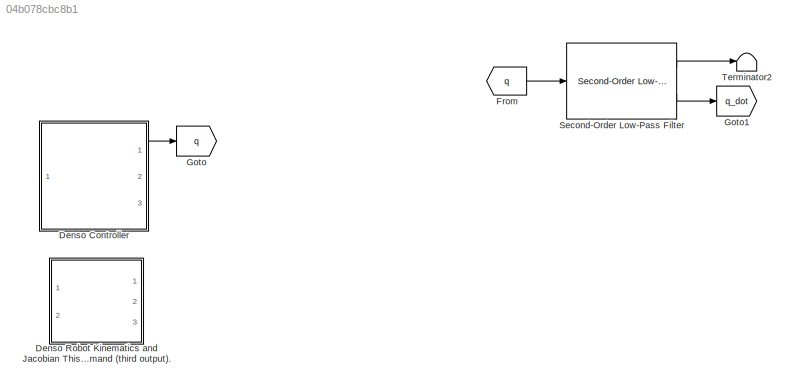
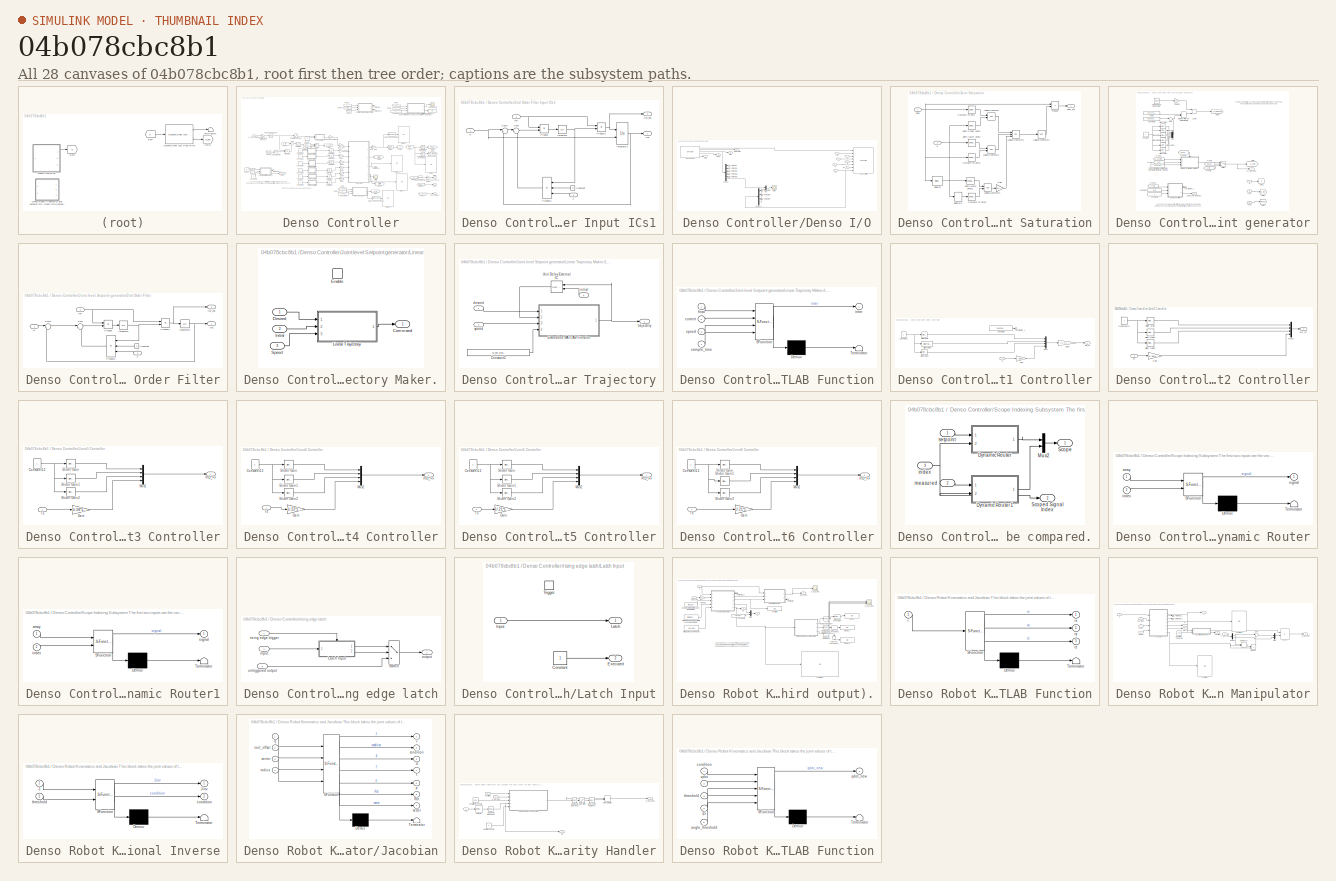
[diagram: thumbnail index - all 28 canvases of the model, root first then tree order]
MODEL slx_04b078cbc8b1
KIND model
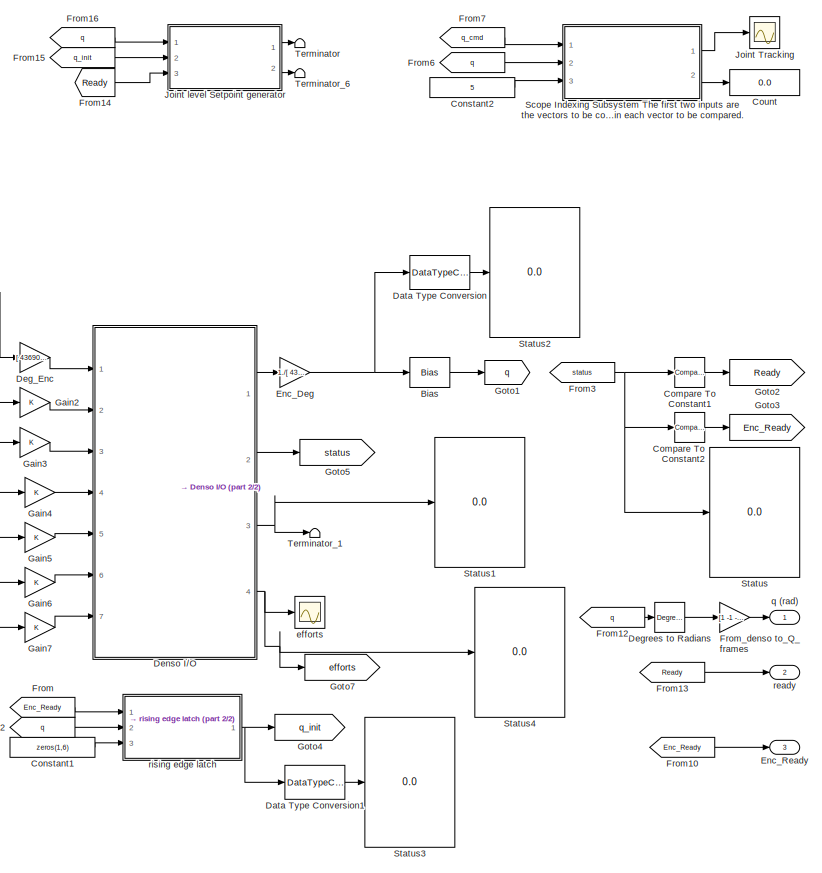
[diagram: Denso Controller - part 1/2, right side, full height]
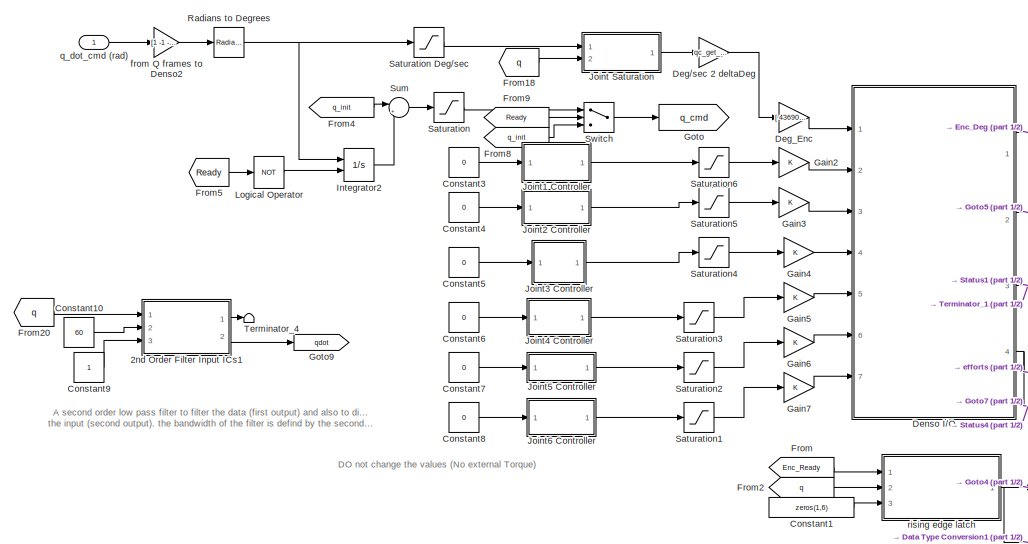
[diagram: Denso Controller - part 2/2, middle left region]
BLOCK [SubSystem] Denso Controller
  FunctionWithSeparateData = off
  MaskHideContents = off
  MinAlgLoopOccurrences = off
  Opaque = off
  Ports = [1, 3]
  PropExecContextOutsideSubsystem = off
  RTWSystemCode = Auto
  RequestExecContextInheritance = off
BLOCK [SubSystem] Denso Controller/2nd Order Filter Input ICs1
  FunctionWithSeparateData = off
  MaskHideContents = off
  MinAlgLoopOccurrences = off
  Opaque = off
  Ports = [3, 2]
  PropExecContextOutsideSubsystem = off
  RTWSystemCode = Auto
  RequestExecContextInheritance = off
BLOCK [Constant] Denso Controller/2nd Order Filter Input ICs1/Constant
  Value = 2
BLOCK [Inport] Denso Controller/2nd Order Filter Input ICs1/In
  IconDisplay = Port number
BLOCK [Integrator] Denso Controller/2nd Order Filter Input ICs1/Integrator
  Ports = [1, 1]
BLOCK [Integrator] Denso Controller/2nd Order Filter Input ICs1/Integrator1
  InitialConditionSource = external
  Ports = [2, 1]
BLOCK [Outport] Denso Controller/2nd Order Filter Input ICs1/Out
  IconDisplay = Port number
BLOCK [Outport] Denso Controller/2nd Order Filter Input ICs1/Out_dot
  IconDisplay = Port number
  Port = 2
BLOCK [Product] Denso Controller/2nd Order Filter Input ICs1/Product
  InputSameDT = off
  OutDataTypeStr = Inherit: Inherit via internal rule
  Ports = [2, 1]
  SaturateOnIntegerOverflow = off
BLOCK [Product] Denso Controller/2nd Order Filter Input ICs1/Product1
  InputSameDT = off
  OutDataTypeStr = Inherit: Inherit via internal rule
  Ports = [2, 1]
  SaturateOnIntegerOverflow = off
BLOCK [Product] Denso Controller/2nd Order Filter Input ICs1/Product2
  InputSameDT = off
  Inputs = 3
  OutDataTypeStr = Inherit: Inherit via internal rule
  Ports = [3, 1]
  SaturateOnIntegerOverflow = off
BLOCK [Sum] Denso Controller/2nd Order Filter Input ICs1/Sum
  IconShape = round
  InputSameDT = off
  Inputs = |+-
  OutDataTypeStr = Inherit: Inherit via internal rule
  Ports = [2, 1]
  SaturateOnIntegerOverflow = off
BLOCK [Sum] Denso Controller/2nd Order Filter Input ICs1/Sum1
  IconShape = round
  InputSameDT = off
  Inputs = |+-
  OutDataTypeStr = Inherit: Inherit via internal rule
  Ports = [2, 1]
  SaturateOnIntegerOverflow = off
BLOCK [Inport] Denso Controller/2nd Order Filter Input ICs1/Wn
  IconDisplay = Port number
  Port = 2
BLOCK [Inport] Denso Controller/2nd Order Filter Input ICs1/z
  IconDisplay = Port number
  Port = 3
BLOCK [Bias] Denso Controller/Bias
  Bias = [0 0 0 0 0 0] %0*[-146 -102 -137+90 -155 85+90 -370]%[-73 -35 -42 -72 +34 -45]
  SaturateOnIntegerOverflow = off
BLOCK [Reference] Denso Controller/Compare To Constant1  REF=simulink/Logic and Bit
Operations/Compare
To Constant
  OutDataTypeStr = uint8
  Ports = [1, 1]
  SourceBlock = simulink/Logic and Bit\nOperations/Compare\nTo Constant
  SourceType = Compare To Constant
  ZeroCross = off
  const = 8
  relop = >=
BLOCK [Reference] Denso Controller/Compare To Constant2  REF=simulink/Logic and Bit
Operations/Compare
To Constant
  OutDataTypeStr = uint8
  Ports = [1, 1]
  SourceBlock = simulink/Logic and Bit\nOperations/Compare\nTo Constant
  SourceType = Compare To Constant
  ZeroCross = off
  const = 7
  relop = >=
BLOCK [Constant] Denso Controller/Constant1
  Value = zeros(1,6)
BLOCK [Constant] Denso Controller/Constant10
  Value = 60
BLOCK [Constant] Denso Controller/Constant2
  Value = 5
BLOCK [Constant] Denso Controller/Constant3
  Value = 0
BLOCK [Constant] Denso Controller/Constant4
  Value = 0
BLOCK [Constant] Denso Controller/Constant5
  Value = 0
BLOCK [Constant] Denso Controller/Constant6
  Value = 0
BLOCK [Constant] Denso Controller/Constant7
  Value = 0
BLOCK [Constant] Denso Controller/Constant8
  Value = 0
BLOCK [Constant] Denso Controller/Constant9
BLOCK [Display] Denso Controller/Count
  Decimation = 100
  Lockdown = off
  Ports = [1]
BLOCK [DataTypeConversion] Denso Controller/Data Type Conversion
  OutDataTypeStr = int32
  RndMeth = Floor
  SaturateOnIntegerOverflow = off
BLOCK [DataTypeConversion] Denso Controller/Data Type Conversion1
  OutDataTypeStr = int32
  RndMeth = Floor
  SaturateOnIntegerOverflow = off
BLOCK [Gain] Denso Controller/Deg//sec 2 deltaDeg
  Gain = qc_get_step_size
  OutDataTypeStr = Inherit: Inherit via internal rule
  ParamDataTypeStr = Inherit: Inherit via internal rule
  SaturateOnIntegerOverflow = off
BLOCK [Gain] Denso Controller/Deg_Enc
  Gain = [ 43690.66667 58254.22222 43690.66667 36408.88889 36408.88889 36408.88889]
  OutDataTypeStr = Inherit: Inherit via internal rule
  ParamDataTypeStr = Inherit: Inherit via internal rule
  SaturateOnIntegerOverflow = off
BLOCK [Reference] Denso Controller/Degrees to Radians  REF=simulink_extras/Transformations/Degrees to
Radians
  Ports = [1, 1]
  SourceBlock = simulink_extras/Transformations/Degrees to\nRadians
  SourceType = DegreesToRadians
BLOCK [SubSystem] Denso Controller/Denso I//O
  FunctionWithSeparateData = off
  MaskHideContents = off
  MinAlgLoopOccurrences = off
  Opaque = off
  Ports = [7, 4]
  PropExecContextOutsideSubsystem = off
  RTWSystemCode = Auto
  RequestExecContextInheritance = off
BLOCK [Demux] Denso Controller/Denso I//O/Demux
  DisplayOption = bar
  Outputs = 6
  Ports = [1, 6]
BLOCK [Demux] Denso Controller/Denso I//O/Demux1
  DisplayOption = bar
  Ports = [1, 4]
BLOCK [S-Function] Denso Controller/Denso I//O/Denso Read
  EnableBusSupport = off
  FunctionName = denso_read_block
  Parameters = uri
  Ports = [0, 5]
BLOCK [S-Function] Denso Controller/Denso I//O/Denso Write
  EnableBusSupport = off
  FunctionName = denso_write_block
  Parameters = velocity_mode
  Ports = [8]
BLOCK [Mux] Denso Controller/Denso I//O/Mux
  DisplayOption = bar
  Inputs = 2
  Ports = [2, 1]
BLOCK [Terminator] Denso Controller/Denso I//O/Terminator
BLOCK [Terminator] Denso Controller/Denso I//O/Terminator1
BLOCK [Terminator] Denso Controller/Denso I//O/Terminator2
BLOCK [Terminator] Denso Controller/Denso I//O/Terminator3
BLOCK [Terminator] Denso Controller/Denso I//O/Terminator4
BLOCK [Terminator] Denso Controller/Denso I//O/Terminator5
BLOCK [Terminator] Denso Controller/Denso I//O/Terminator6
BLOCK [Terminator] Denso Controller/Denso I//O/Terminator7
BLOCK [Inport] Denso Controller/Denso I//O/cmd
  IconDisplay = Port number
BLOCK [Outport] Denso Controller/Denso I//O/effort
  IconDisplay = Port number
  Port = 4
BLOCK [Scope] Denso Controller/Denso I//O/efforts
  DataFormat = StructureWithTime
  Floating = off
  LimitDataPoints = off
  NumInputPorts = 1
  Ports = [1]
  SampleTime = 0
  SaveName = compare
  SaveToWorkspace = on
  ShowLegends = off
  TimeRange = 2
  YMax = 0.5
  YMin = -4.5
BLOCK [Outport] Denso Controller/Denso I//O/errors
  IconDisplay = Port number
  Port = 3
BLOCK [Inport] Denso Controller/Denso I//O/j1
  IconDisplay = Port number
  Port = 2
BLOCK [Inport] Denso Controller/Denso I//O/j2
  IconDisplay = Port number
  Port = 3
BLOCK [Inport] Denso Controller/Denso I//O/j3
  IconDisplay = Port number
  Port = 4
BLOCK [Inport] Denso Controller/Denso I//O/j4
  IconDisplay = Port number
  Port = 5
BLOCK [Inport] Denso Controller/Denso I//O/j5
  IconDisplay = Port number
  Port = 6
BLOCK [Inport] Denso Controller/Denso I//O/j6
  IconDisplay = Port number
  Port = 7
BLOCK [Outport] Denso Controller/Denso I//O/joint position
  IconDisplay = Port number
BLOCK [Outport] Denso Controller/Denso I//O/status
  IconDisplay = Port number
  Port = 2
BLOCK [Gain] Denso Controller/Enc_Deg
  Gain = 1./[ 43690.66667 58254.22222 43690.66667 36408.88889 36408.88889 36408.88889]
  OutDataTypeStr = Inherit: Inherit via internal rule
  ParamDataTypeStr = Inherit: Inherit via internal rule
  SaturateOnIntegerOverflow = off
BLOCK [Outport] Denso Controller/Enc_Ready
  IconDisplay = Port number
  Port = 3
BLOCK [From] Denso Controller/From
  CloseFcn = tagdialog Close
  GotoTag = Enc_Ready
BLOCK [From] Denso Controller/From10
  CloseFcn = tagdialog Close
  GotoTag = Enc_Ready
BLOCK [From] Denso Controller/From12
  CloseFcn = tagdialog Close
  GotoTag = q
BLOCK [From] Denso Controller/From13
  CloseFcn = tagdialog Close
  GotoTag = Ready
BLOCK [From] Denso Controller/From14
  CloseFcn = tagdialog Close
  GotoTag = Ready
BLOCK [From] Denso Controller/From15
  CloseFcn = tagdialog Close
  GotoTag = q_init
BLOCK [From] Denso Controller/From16
  CloseFcn = tagdialog Close
  GotoTag = q
BLOCK [From] Denso Controller/From18
  CloseFcn = tagdialog Close
  GotoTag = q
BLOCK [From] Denso Controller/From2
  CloseFcn = tagdialog Close
  GotoTag = q
BLOCK [From] Denso Controller/From20
  CloseFcn = tagdialog Close
  GotoTag = q
BLOCK [From] Denso Controller/From3
  CloseFcn = tagdialog Close
  GotoTag = status
BLOCK [From] Denso Controller/From4
  CloseFcn = tagdialog Close
  GotoTag = q_init
BLOCK [From] Denso Controller/From5
  CloseFcn = tagdialog Close
  GotoTag = Ready
BLOCK [From] Denso Controller/From6
  CloseFcn = tagdialog Close
  GotoTag = q
BLOCK [From] Denso Controller/From7
  CloseFcn = tagdialog Close
  GotoTag = q_cmd
BLOCK [From] Denso Controller/From8
  CloseFcn = tagdialog Close
  GotoTag = q_init
BLOCK [From] Denso Controller/From9
  CloseFcn = tagdialog Close
  GotoTag = Ready
BLOCK [Gain] Denso Controller/From_denso to_Q_frames
  Gain = [1 -1 -1 1 -1 1]
  OutDataTypeStr = Inherit: Inherit via internal rule
  ParamDataTypeStr = Inherit: Inherit via internal rule
  SaturateOnIntegerOverflow = off
BLOCK [Gain] Denso Controller/Gain2
  OutDataTypeStr = Inherit: Inherit via internal rule
  ParamDataTypeStr = Inherit: Inherit via internal rule
  SaturateOnIntegerOverflow = off
BLOCK [Gain] Denso Controller/Gain3
  OutDataTypeStr = Inherit: Inherit via internal rule
  ParamDataTypeStr = Inherit: Inherit via internal rule
  SaturateOnIntegerOverflow = off
BLOCK [Gain] Denso Controller/Gain4
  OutDataTypeStr = Inherit: Inherit via internal rule
  ParamDataTypeStr = Inherit: Inherit via internal rule
  SaturateOnIntegerOverflow = off
BLOCK [Gain] Denso Controller/Gain5
  OutDataTypeStr = Inherit: Inherit via internal rule
  ParamDataTypeStr = Inherit: Inherit via internal rule
  SaturateOnIntegerOverflow = off
BLOCK [Gain] Denso Controller/Gain6
  OutDataTypeStr = Inherit: Inherit via internal rule
  ParamDataTypeStr = Inherit: Inherit via internal rule
  SaturateOnIntegerOverflow = off
BLOCK [Gain] Denso Controller/Gain7
  OutDataTypeStr = Inherit: Inherit via internal rule
  ParamDataTypeStr = Inherit: Inherit via internal rule
  SaturateOnIntegerOverflow = off
BLOCK [Goto] Denso Controller/Goto
  GotoTag = q_cmd
BLOCK [Goto] Denso Controller/Goto1
  GotoTag = q
BLOCK [Goto] Denso Controller/Goto2
  GotoTag = Ready
BLOCK [Goto] Denso Controller/Goto3
  GotoTag = Enc_Ready
BLOCK [Goto] Denso Controller/Goto4
  GotoTag = q_init
BLOCK [Goto] Denso Controller/Goto5
  GotoTag = status
BLOCK [Goto] Denso Controller/Goto7
  GotoTag = efforts
BLOCK [Goto] Denso Controller/Goto9
  GotoTag = qdot
BLOCK [Integrator] Denso Controller/Integrator2
  ExternalReset = level
  Ports = [2, 1]
BLOCK [SubSystem] Denso Controller/Joint Saturation
  FunctionWithSeparateData = off
  MaskHideContents = off
  MinAlgLoopOccurrences = off
  Opaque = off
  Ports = [2, 1]
  PropExecContextOutsideSubsystem = off
  RTWSystemCode = Auto
  RequestExecContextInheritance = off
BLOCK [Reference] Denso Controller/Joint Saturation/Compare To Zero  REF=simulink/Logic and Bit
Operations/Compare
To Zero
  OutDataTypeStr = uint8
  Ports = [1, 1]
  SourceBlock = simulink/Logic and Bit\nOperations/Compare\nTo Zero
  SourceType = Compare To Zero
  ZeroCross = off
  relop = >=
BLOCK [Reference] Denso Controller/Joint Saturation/Compare To Zero1  REF=simulink/Logic and Bit
Operations/Compare
To Zero
  OutDataTypeStr = uint8
  Ports = [1, 1]
  SourceBlock = simulink/Logic and Bit\nOperations/Compare\nTo Zero
  SourceType = Compare To Zero
  ZeroCross = off
  relop = <=
BLOCK [Reference] Denso Controller/Joint Saturation/Compare To Zero2  REF=simulink/Logic and Bit
Operations/Compare
To Zero
  OutDataTypeStr = uint8
  Ports = [1, 1]
  SourceBlock = simulink/Logic and Bit\nOperations/Compare\nTo Zero
  SourceType = Compare To Zero
  ZeroCross = off
  relop = <=
BLOCK [Gain] Denso Controller/Joint Saturation/Gain
  Gain = [1 1 1 1 1 1]
  OutDataTypeStr = Inherit: Inherit via internal rule
  ParamDataTypeStr = Inherit: Inherit via internal rule
  SaturateOnIntegerOverflow = off
BLOCK [Reference] Denso Controller/Joint Saturation/Joints Lower Limits  REF=simulink/Logic and Bit
Operations/Compare
To Constant
  OutDataTypeStr = uint8
  Ports = [1, 1]
  SourceBlock = simulink/Logic and Bit\nOperations/Compare\nTo Constant
  SourceType = Compare To Constant
  ZeroCross = off
  const = -[160 122 -38 162 100 160]
  relop = <=
BLOCK [Reference] Denso Controller/Joint Saturation/Joints Lower Limits1  REF=simulink/Logic and Bit
Operations/Compare
To Constant
  OutDataTypeStr = uint8
  Ports = [1, 1]
  SourceBlock = simulink/Logic and Bit\nOperations/Compare\nTo Constant
  SourceType = Compare To Constant
  ZeroCross = off
  const = 38
  relop = <=
BLOCK [Reference] Denso Controller/Joint Saturation/Joints Upper Limits  REF=simulink/Logic and Bit
Operations/Compare
To Constant
  OutDataTypeStr = uint8
  Ports = [1, 1]
  SourceBlock = simulink/Logic and Bit\nOperations/Compare\nTo Constant
  SourceType = Compare To Constant
  ZeroCross = off
  const = [160 65 162 162 100 160]
  relop = >=
BLOCK [Logic] Denso Controller/Joint Saturation/Logical Operator
  AllPortsSameDT = off
  OutDataTypeStr = boolean
  Ports = [2, 1]
BLOCK [Logic] Denso Controller/Joint Saturation/Logical Operator1
  AllPortsSameDT = off
  OutDataTypeStr = boolean
  Ports = [2, 1]
BLOCK [Logic] Denso Controller/Joint Saturation/Logical Operator2
  AllPortsSameDT = off
  Inputs = 3
  Operator = OR
  OutDataTypeStr = boolean
  Ports = [3, 1]
BLOCK [Logic] Denso Controller/Joint Saturation/Logical Operator3
  AllPortsSameDT = off
  Operator = NOT
  OutDataTypeStr = boolean
  Ports = [1, 1]
BLOCK [Logic] Denso Controller/Joint Saturation/Logical Operator4
  AllPortsSameDT = off
  OutDataTypeStr = boolean
  Ports = [2, 1]
BLOCK [Product] Denso Controller/Joint Saturation/Product
  InputSameDT = off
  OutDataTypeStr = Inherit: Inherit via internal rule
  Ports = [2, 1]
  SaturateOnIntegerOverflow = off
BLOCK [Selector] Denso Controller/Joint Saturation/Selector
  IndexOptions = Index vector (dialog)
  Indices = 3
  InputPortWidth = 6
  OutputSizes = 1
  Ports = [1, 1]
BLOCK [Selector] Denso Controller/Joint Saturation/Selector1
  IndexOptions = Index vector (dialog)
  Indices = 3
  InputPortWidth = 6
  OutputSizes = 1
  Ports = [1, 1]
BLOCK [Inport] Denso Controller/Joint Saturation/q
  IconDisplay = Port number
  Port = 2
BLOCK [Inport] Denso Controller/Joint Saturation/qdot
  IconDisplay = Port number
BLOCK [Outport] Denso Controller/Joint Saturation/qdot_sat
  IconDisplay = Port number
BLOCK [Scope] Denso Controller/Joint Tracking
  DataFormat = StructureWithTime
  Floating = off
  NumInputPorts = 1
  Ports = [1]
  SampleTime = 0
  SaveName = ScopeData1
  ShowLegends = off
  TimeRange = 2
  YMax = 100.5
  YMin = 93
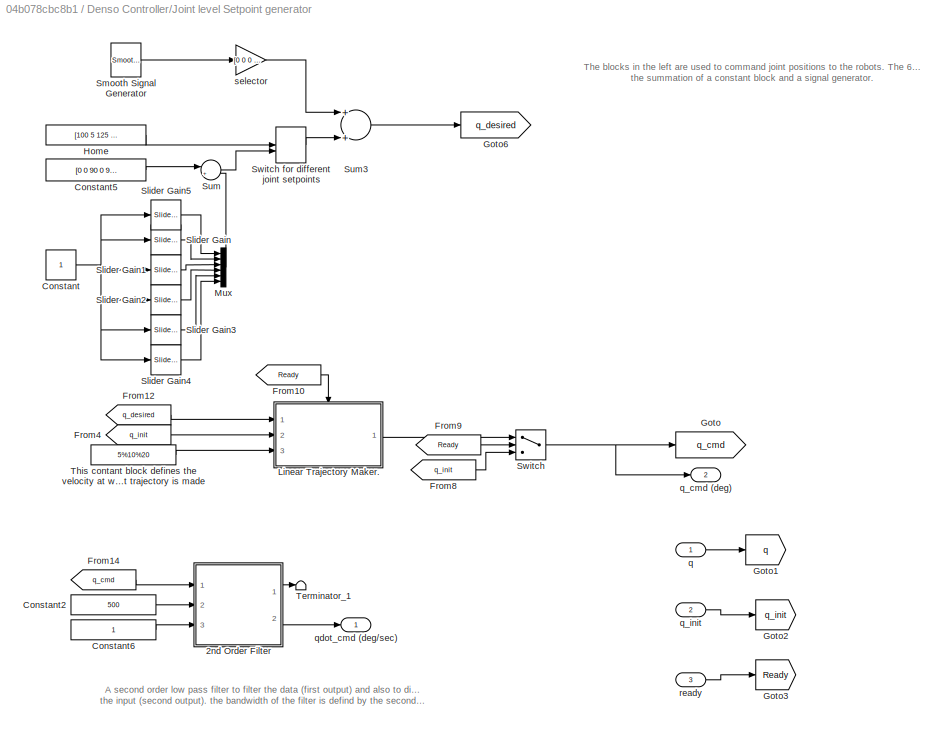
BLOCK [SubSystem] Denso Controller/Joint level Setpoint generator
  FunctionWithSeparateData = off
  MaskHideContents = off
  MinAlgLoopOccurrences = off
  Opaque = off
  Ports = [3, 2]
  PropExecContextOutsideSubsystem = off
  RTWSystemCode = Auto
  RequestExecContextInheritance = off
BLOCK [SubSystem] Denso Controller/Joint level Setpoint generator/2nd Order Filter
  FunctionWithSeparateData = off
  MaskHideContents = off
  MinAlgLoopOccurrences = off
  Opaque = off
  Ports = [3, 2]
  PropExecContextOutsideSubsystem = off
  RTWSystemCode = Auto
  RequestExecContextInheritance = off
BLOCK [Constant] Denso Controller/Joint level Setpoint generator/2nd Order Filter/Constant
  Value = 2
BLOCK [Inport] Denso Controller/Joint level Setpoint generator/2nd Order Filter/In
  IconDisplay = Port number
BLOCK [Integrator] Denso Controller/Joint level Setpoint generator/2nd Order Filter/Integrator
  Ports = [1, 1]
BLOCK [Integrator] Denso Controller/Joint level Setpoint generator/2nd Order Filter/Integrator1
  Ports = [1, 1]
BLOCK [Outport] Denso Controller/Joint level Setpoint generator/2nd Order Filter/Out
  IconDisplay = Port number
BLOCK [Outport] Denso Controller/Joint level Setpoint generator/2nd Order Filter/Out_dot
  IconDisplay = Port number
  Port = 2
BLOCK [Product] Denso Controller/Joint level Setpoint generator/2nd Order Filter/Product
  InputSameDT = off
  OutDataTypeStr = Inherit: Inherit via internal rule
  Ports = [2, 1]
  SaturateOnIntegerOverflow = off
BLOCK [Product] Denso Controller/Joint level Setpoint generator/2nd Order Filter/Product1
  InputSameDT = off
  OutDataTypeStr = Inherit: Inherit via internal rule
  Ports = [2, 1]
  SaturateOnIntegerOverflow = off
BLOCK [Product] Denso Controller/Joint level Setpoint generator/2nd Order Filter/Product2
  InputSameDT = off
  Inputs = 3
  OutDataTypeStr = Inherit: Inherit via internal rule
  Ports = [3, 1]
  SaturateOnIntegerOverflow = off
BLOCK [Sum] Denso Controller/Joint level Setpoint generator/2nd Order Filter/Sum
  IconShape = round
  InputSameDT = off
  Inputs = |+-
  OutDataTypeStr = Inherit: Inherit via internal rule
  Ports = [2, 1]
  SaturateOnIntegerOverflow = off
BLOCK [Sum] Denso Controller/Joint level Setpoint generator/2nd Order Filter/Sum1
  IconShape = round
  InputSameDT = off
  Inputs = |+-
  OutDataTypeStr = Inherit: Inherit via internal rule
  Ports = [2, 1]
  SaturateOnIntegerOverflow = off
BLOCK [Inport] Denso Controller/Joint level Setpoint generator/2nd Order Filter/Wn
  IconDisplay = Port number
  Port = 2
BLOCK [Inport] Denso Controller/Joint level Setpoint generator/2nd Order Filter/z
  IconDisplay = Port number
  Port = 3
BLOCK [Constant] Denso Controller/Joint level Setpoint generator/Constant
BLOCK [Constant] Denso Controller/Joint level Setpoint generator/Constant2
  Value = 500
BLOCK [Constant] Denso Controller/Joint level Setpoint generator/Constant5
  Value = [0 0 90 0 90 0]
BLOCK [Constant] Denso Controller/Joint level Setpoint generator/Constant6
BLOCK [From] Denso Controller/Joint level Setpoint generator/From10
  CloseFcn = tagdialog Close
  GotoTag = Ready
BLOCK [From] Denso Controller/Joint level Setpoint generator/From12
  CloseFcn = tagdialog Close
  GotoTag = q_desired
BLOCK [From] Denso Controller/Joint level Setpoint generator/From14
  CloseFcn = tagdialog Close
  GotoTag = q_cmd
  TagVisibility = global
BLOCK [From] Denso Controller/Joint level Setpoint generator/From4
  CloseFcn = tagdialog Close
  GotoTag = q_init
BLOCK [From] Denso Controller/Joint level Setpoint generator/From8
  CloseFcn = tagdialog Close
  GotoTag = q_init
BLOCK [From] Denso Controller/Joint level Setpoint generator/From9
  CloseFcn = tagdialog Close
  GotoTag = Ready
BLOCK [Goto] Denso Controller/Joint level Setpoint generator/Goto
  GotoTag = q_cmd
  TagVisibility = global
BLOCK [Goto] Denso Controller/Joint level Setpoint generator/Goto1
  GotoTag = q
BLOCK [Goto] Denso Controller/Joint level Setpoint generator/Goto2
  GotoTag = q_init
BLOCK [Goto] Denso Controller/Joint level Setpoint generator/Goto3
  GotoTag = Ready
BLOCK [Goto] Denso Controller/Joint level Setpoint generator/Goto6
  GotoTag = q_desired
BLOCK [Constant] Denso Controller/Joint level Setpoint generator/Home
  Value = [100 5 125 -70 97 0]
BLOCK [SubSystem] Denso Controller/Joint level Setpoint generator/Linear Trajectory Maker.
  FunctionWithSeparateData = off
  MaskHideContents = off
  MinAlgLoopOccurrences = off
  Opaque = off
  Ports = [3, 1, 1]
  PropExecContextOutsideSubsystem = off
  RTWSystemCode = Auto
  RequestExecContextInheritance = off
  TreatAsAtomicUnit = on
BLOCK [Outport] Denso Controller/Joint level Setpoint generator/Linear Trajectory Maker./Command
  IconDisplay = Port number
  InitialOutput = zeros (1,6)
  OutputWhenDisabled = reset
BLOCK [Inport] Denso Controller/Joint level Setpoint generator/Linear Trajectory Maker./Desired
  IconDisplay = Port number
BLOCK [EnablePort] Denso Controller/Joint level Setpoint generator/Linear Trajectory Maker./Enable
  Ports = []
  StatesWhenEnabling = reset
BLOCK [Inport] Denso Controller/Joint level Setpoint generator/Linear Trajectory Maker./Initial
  IconDisplay = Port number
  Port = 2
BLOCK [SubSystem] Denso Controller/Joint level Setpoint generator/Linear Trajectory Maker./Linear Trajectory
  AncestorBlock = quanser_tunable_functions/Linear Trajectory
  FunctionWithSeparateData = off
  MaskHideContents = off
  MinAlgLoopOccurrences = off
  Opaque = off
  Ports = [3, 1]
  Priority = 1
  PropExecContextOutsideSubsystem = off
  RTWSystemCode = Auto
  RequestExecContextInheritance = off
BLOCK [Constant] Denso Controller/Joint level Setpoint generator/Linear Trajectory Maker./Linear Trajectory/Constant2
  Value = qc_get_step_size
BLOCK [SubSystem] Denso Controller/Joint level Setpoint generator/Linear Trajectory Maker./Linear Trajectory/Embedded MATLAB Function
  ErrorFcn = Stateflow.Translate.translate
  FunctionWithSeparateData = off
  MaskHideContents = off
  MinAlgLoopOccurrences = off
  Opaque = off
  PermitHierarchicalResolution = ExplicitOnly
  Ports = [4, 1]
  PropExecContextOutsideSubsystem = off
  RTWSystemCode = Auto
  RequestExecContextInheritance = off
  SFBlockType = MATLAB Function
  TreatAsAtomicUnit = on
BLOCK [Demux] Denso Controller/Joint level Setpoint generator/Linear Trajectory Maker./Linear Trajectory/Embedded MATLAB Function/ Demux 
  Outputs = 1
  Ports = [1, 1]
BLOCK [S-Function] Denso Controller/Joint level Setpoint generator/Linear Trajectory Maker./Linear Trajectory/Embedded MATLAB Function/ SFunction 
  EnableBusSupport = on
  FunctionName = sf_sfun
  PortCounts = [4 2]
  Ports = [4, 2]
  Tag = Stateflow S-Function Square 1
BLOCK [Terminator] Denso Controller/Joint level Setpoint generator/Linear Trajectory Maker./Linear Trajectory/Embedded MATLAB Function/ Terminator 
BLOCK [Inport] Denso Controller/Joint level Setpoint generator/Linear Trajectory Maker./Linear Trajectory/Embedded MATLAB Function/current
  IconDisplay = Port number
  Port = 2
BLOCK [Inport] Denso Controller/Joint level Setpoint generator/Linear Trajectory Maker./Linear Trajectory/Embedded MATLAB Function/final
  IconDisplay = Port number
BLOCK [Outport] Denso Controller/Joint level Setpoint generator/Linear Trajectory Maker./Linear Trajectory/Embedded MATLAB Function/inter
  IconDisplay = Port number
BLOCK [Inport] Denso Controller/Joint level Setpoint generator/Linear Trajectory Maker./Linear Trajectory/Embedded MATLAB Function/sample_time
  IconDisplay = Port number
  Port = 4
BLOCK [Inport] Denso Controller/Joint level Setpoint generator/Linear Trajectory Maker./Linear Trajectory/Embedded MATLAB Function/speed
  IconDisplay = Port number
  Port = 3
BLOCK [Reference] Denso Controller/Joint level Setpoint generator/Linear Trajectory Maker./Linear Trajectory/Unit Delay External IC  REF=simulink/Additional Math
& Discrete/Additional
Discrete/Unit Delay
External IC
  Ports = [2, 1]
  SourceBlock = simulink/Additional Math\n& Discrete/Additional\nDiscrete/Unit Delay\nExternal IC
  SourceType = Unit Delay External Initial Condition
  tsamp = -1
BLOCK [Inport] Denso Controller/Joint level Setpoint generator/Linear Trajectory Maker./Linear Trajectory/desired
  IconDisplay = Port number
BLOCK [Inport] Denso Controller/Joint level Setpoint generator/Linear Trajectory Maker./Linear Trajectory/initial
  IconDisplay = Port number
  Port = 2
BLOCK [Inport] Denso Controller/Joint level Setpoint generator/Linear Trajectory Maker./Linear Trajectory/speed
  IconDisplay = Port number
  Port = 3
BLOCK [Outport] Denso Controller/Joint level Setpoint generator/Linear Trajectory Maker./Linear Trajectory/trajectory
  IconDisplay = Port number
BLOCK [Inport] Denso Controller/Joint level Setpoint generator/Linear Trajectory Maker./Speed
  IconDisplay = Port number
  Port = 3
BLOCK [Mux] Denso Controller/Joint level Setpoint generator/Mux
  DisplayOption = bar
  Inputs = 6
  Ports = [6, 1]
BLOCK [Reference] Denso Controller/Joint level Setpoint generator/Slider Gain  REF=simulink/Math
Operations/Slider
Gain
  Ports = [1, 1]
  SourceBlock = simulink/Math\nOperations/Slider\nGain
  SourceType = Slider Gain
  gain = 45
  high = 45
  low = -10
BLOCK [Reference] Denso Controller/Joint level Setpoint generator/Slider Gain1  REF=simulink/Math
Operations/Slider
Gain
  Ports = [1, 1]
  SourceBlock = simulink/Math\nOperations/Slider\nGain
  SourceType = Slider Gain
  gain = 0
  high = 10
  low = -60
BLOCK [Reference] Denso Controller/Joint level Setpoint generator/Slider Gain2  REF=simulink/Math
Operations/Slider
Gain
  Ports = [1, 1]
  SourceBlock = simulink/Math\nOperations/Slider\nGain
  SourceType = Slider Gain
  gain = 0
  high = 10
  low = -10
BLOCK [Reference] Denso Controller/Joint level Setpoint generator/Slider Gain3  REF=simulink/Math
Operations/Slider
Gain
  Ports = [1, 1]
  SourceBlock = simulink/Math\nOperations/Slider\nGain
  SourceType = Slider Gain
  gain = -135
  high = 10
  low = -180
BLOCK [Reference] Denso Controller/Joint level Setpoint generator/Slider Gain4  REF=simulink/Math
Operations/Slider
Gain
  Ports = [1, 1]
  SourceBlock = simulink/Math\nOperations/Slider\nGain
  SourceType = Slider Gain
  gain = 0
  high = 10
  low = -10
BLOCK [Reference] Denso Controller/Joint level Setpoint generator/Slider Gain5  REF=simulink/Math
Operations/Slider
Gain
  Ports = [1, 1]
  SourceBlock = simulink/Math\nOperations/Slider\nGain
  SourceType = Slider Gain
  gain = 0
  high = 10
  low = -10
BLOCK [Reference] Denso Controller/Joint level Setpoint generator/Smooth Signal Generator  REF=quarc_library/Sources/Signals/Smooth Signal
Generator
  Ports = [0, 1]
  SourceBlock = quarc_library/Sources/Signals/Smooth Signal\nGenerator
  SourceType = Smooth Signal Generator
  amplitude = 0
  frequency = .2
  initial_phase = 0
  output_cos = off
  sample_time = qc_get_step_size
  signal_type = Sine
  source = Internal (dialog parameters)
BLOCK [Sum] Denso Controller/Joint level Setpoint generator/Sum
  IconShape = round
  InputSameDT = off
  Inputs = |++
  OutDataTypeStr = Inherit: Inherit via internal rule
  Ports = [2, 1]
  SaturateOnIntegerOverflow = off
BLOCK [Sum] Denso Controller/Joint level Setpoint generator/Sum3
  InputSameDT = off
  OutDataTypeStr = Inherit: Inherit via internal rule
  Ports = [2, 1]
  SaturateOnIntegerOverflow = off
BLOCK [Switch] Denso Controller/Joint level Setpoint generator/Switch
  InputSameDT = off
  SaturateOnIntegerOverflow = off
  Threshold = 1
BLOCK [ManualSwitch] Denso Controller/Joint level Setpoint generator/Switch for different joint setpoints
  CurrentSetting = 0
BLOCK [Terminator] Denso Controller/Joint level Setpoint generator/Terminator_1
BLOCK [Constant] Denso Controller/Joint level Setpoint generator/This contant block defines the velocity at which the desired joint trajectory is made
  Value = 5%10%20
BLOCK [Inport] Denso Controller/Joint level Setpoint generator/q
  IconDisplay = Port number
BLOCK [Outport] Denso Controller/Joint level Setpoint generator/q_cmd (deg)
  IconDisplay = Port number
  Port = 2
BLOCK [Inport] Denso Controller/Joint level Setpoint generator/q_init
  IconDisplay = Port number
  Port = 2
BLOCK [Outport] Denso Controller/Joint level Setpoint generator/qdot_cmd (deg//sec)
  IconDisplay = Port number
BLOCK [Inport] Denso Controller/Joint level Setpoint generator/ready
  IconDisplay = Port number
  Port = 3
BLOCK [Gain] Denso Controller/Joint level Setpoint generator/selector
  Gain = [0 0 0 0 1 0]
  OutDataTypeStr = Inherit: Inherit via internal rule
  ParamDataTypeStr = Inherit: Inherit via internal rule
  SaturateOnIntegerOverflow = off
BLOCK [SubSystem] Denso Controller/Joint1 Controller
  FunctionWithSeparateData = off
  MaskHideContents = off
  MinAlgLoopOccurrences = off
  Opaque = off
  Ports = [1, 1]
  PropExecContextOutsideSubsystem = off
  RTWSystemCode = Auto
  RequestExecContextInheritance = off
BLOCK [Constant] Denso Controller/Joint1 Controller/Constant12
BLOCK [Constant] Denso Controller/Joint1 Controller/Constant6
  Value = [1 0.1 28 35]
BLOCK [Gain] Denso Controller/Joint1 Controller/Gain
  Gain = 1/.38*120
  OutDataTypeStr = Inherit: Inherit via internal rule
  ParamDataTypeStr = Inherit: Inherit via internal rule
  SaturateOnIntegerOverflow = off
BLOCK [Gain] Denso Controller/Joint1 Controller/Gain3
  Gain = [1 1 1   1]
  OutDataTypeStr = Inherit: Inherit via internal rule
  ParamDataTypeStr = Inherit: Inherit via internal rule
  SaturateOnIntegerOverflow = off
BLOCK [Mux] Denso Controller/Joint1 Controller/Mux2
  DisplayOption = bar
  Ports = [4, 1]
BLOCK [Outport] Denso Controller/Joint1 Controller/PID_FF
  IconDisplay = Port number
BLOCK [Reference] Denso Controller/Joint1 Controller/Slider Gain  REF=simulink/Math
Operations/Slider
Gain
  Ports = [1, 1]
  SourceBlock = simulink/Math\nOperations/Slider\nGain
  SourceType = Slider Gain
  gain = 0.22
  high = 1
  low = 0
BLOCK [Reference] Denso Controller/Joint1 Controller/Slider Gain1  REF=simulink/Math
Operations/Slider
Gain
  Ports = [1, 1]
  SourceBlock = simulink/Math\nOperations/Slider\nGain
  SourceType = Slider Gain
  gain = 0.1
  high = 24
  low = 0
BLOCK [Reference] Denso Controller/Joint1 Controller/Slider Gain2  REF=simulink/Math
Operations/Slider
Gain
  Ports = [1, 1]
  SourceBlock = simulink/Math\nOperations/Slider\nGain
  SourceType = Slider Gain
  gain = 24
  high = 100
  low = 0
BLOCK [Inport] Denso Controller/Joint1 Controller/T1
  IconDisplay = Port number
BLOCK [Terminator] Denso Controller/Joint1 Controller/Terminator_1
BLOCK [SubSystem] Denso Controller/Joint2 Controller
  FunctionWithSeparateData = off
  MaskHideContents = off
  MinAlgLoopOccurrences = off
  Opaque = off
  Ports = [1, 1]
  PropExecContextOutsideSubsystem = off
  RTWSystemCode = Auto
  RequestExecContextInheritance = off
BLOCK [Constant] Denso Controller/Joint2 Controller/Constant12
BLOCK [Gain] Denso Controller/Joint2 Controller/Gain
  Gain = 1/.38*160
  OutDataTypeStr = Inherit: Inherit via internal rule
  ParamDataTypeStr = Inherit: Inherit via internal rule
  SaturateOnIntegerOverflow = off
BLOCK [Mux] Denso Controller/Joint2 Controller/Mux2
  DisplayOption = bar
  Ports = [4, 1]
BLOCK [Outport] Denso Controller/Joint2 Controller/PID_FF
  IconDisplay = Port number
BLOCK [Reference] Denso Controller/Joint2 Controller/Slider Gain  REF=simulink/Math
Operations/Slider
Gain
  Ports = [1, 1]
  SourceBlock = simulink/Math\nOperations/Slider\nGain
  SourceType = Slider Gain
  gain = 0.1512
  high = 1
  low = 0
BLOCK [Reference] Denso Controller/Joint2 Controller/Slider Gain1  REF=simulink/Math
Operations/Slider
Gain
  Ports = [1, 1]
  SourceBlock = simulink/Math\nOperations/Slider\nGain
  SourceType = Slider Gain
  gain = 0.08
  high = 0.1
  low = 0
BLOCK [Reference] Denso Controller/Joint2 Controller/Slider Gain2  REF=simulink/Math
Operations/Slider
Gain
  Ports = [1, 1]
  SourceBlock = simulink/Math\nOperations/Slider\nGain
  SourceType = Slider Gain
  gain = 14.88
  high = 20
  low = 0
BLOCK [Inport] Denso Controller/Joint2 Controller/T2
  IconDisplay = Port number
BLOCK [SubSystem] Denso Controller/Joint3 Controller
  FunctionWithSeparateData = off
  MaskHideContents = off
  MinAlgLoopOccurrences = off
  Opaque = off
  Ports = [1, 1]
  PropExecContextOutsideSubsystem = off
  RTWSystemCode = Auto
  RequestExecContextInheritance = off
BLOCK [Constant] Denso Controller/Joint3 Controller/Constant12
BLOCK [Gain] Denso Controller/Joint3 Controller/Gain
  Gain = 1/.38*120
  OutDataTypeStr = Inherit: Inherit via internal rule
  ParamDataTypeStr = Inherit: Inherit via internal rule
  SaturateOnIntegerOverflow = off
BLOCK [Mux] Denso Controller/Joint3 Controller/Mux2
  DisplayOption = bar
  Ports = [4, 1]
BLOCK [Outport] Denso Controller/Joint3 Controller/PID_FF
  IconDisplay = Port number
BLOCK [Reference] Denso Controller/Joint3 Controller/Slider Gain  REF=simulink/Math
Operations/Slider
Gain
  Ports = [1, 1]
  SourceBlock = simulink/Math\nOperations/Slider\nGain
  SourceType = Slider Gain
  gain = 0.19
  high = 0.4
  low = 0
BLOCK [Reference] Denso Controller/Joint3 Controller/Slider Gain1  REF=simulink/Math
Operations/Slider
Gain
  Ports = [1, 1]
  SourceBlock = simulink/Math\nOperations/Slider\nGain
  SourceType = Slider Gain
  gain = 0.3
  high = 0.5
  low = 0
BLOCK [Reference] Denso Controller/Joint3 Controller/Slider Gain2  REF=simulink/Math
Operations/Slider
Gain
  Ports = [1, 1]
  SourceBlock = simulink/Math\nOperations/Slider\nGain
  SourceType = Slider Gain
  gain = 10.8
  high = 18
  low = 0
BLOCK [Inport] Denso Controller/Joint3 Controller/T3
  IconDisplay = Port number
BLOCK [SubSystem] Denso Controller/Joint4 Controller
  FunctionWithSeparateData = off
  MaskHideContents = off
  MinAlgLoopOccurrences = off
  Opaque = off
  Ports = [1, 1]
  PropExecContextOutsideSubsystem = off
  RTWSystemCode = Auto
  RequestExecContextInheritance = off
BLOCK [Constant] Denso Controller/Joint4 Controller/Constant12
BLOCK [Gain] Denso Controller/Joint4 Controller/Gain
  Gain = 1/.22*100
  OutDataTypeStr = Inherit: Inherit via internal rule
  ParamDataTypeStr = Inherit: Inherit via internal rule
  SaturateOnIntegerOverflow = off
BLOCK [Mux] Denso Controller/Joint4 Controller/Mux2
  DisplayOption = bar
  Ports = [4, 1]
BLOCK [Outport] Denso Controller/Joint4 Controller/PID_FF
  IconDisplay = Port number
BLOCK [Reference] Denso Controller/Joint4 Controller/Slider Gain  REF=simulink/Math
Operations/Slider
Gain
  Ports = [1, 1]
  SourceBlock = simulink/Math\nOperations/Slider\nGain
  SourceType = Slider Gain
  gain = 0.05
  high = 0.1
  low = 0
BLOCK [Reference] Denso Controller/Joint4 Controller/Slider Gain1  REF=simulink/Math
Operations/Slider
Gain
  Ports = [1, 1]
  SourceBlock = simulink/Math\nOperations/Slider\nGain
  SourceType = Slider Gain
  gain = 0.05
  high = 0.2
  low = 0
BLOCK [Reference] Denso Controller/Joint4 Controller/Slider Gain2  REF=simulink/Math
Operations/Slider
Gain
  Ports = [1, 1]
  SourceBlock = simulink/Math\nOperations/Slider\nGain
  SourceType = Slider Gain
  gain = 1.4
  high = 2
  low = 0
BLOCK [Inport] Denso Controller/Joint4 Controller/T4
  IconDisplay = Port number
BLOCK [SubSystem] Denso Controller/Joint5 Controller
  FunctionWithSeparateData = off
  MaskHideContents = off
  MinAlgLoopOccurrences = off
  Opaque = off
  Ports = [1, 1]
  PropExecContextOutsideSubsystem = off
  RTWSystemCode = Auto
  RequestExecContextInheritance = off
BLOCK [Constant] Denso Controller/Joint5 Controller/Constant12
BLOCK [Gain] Denso Controller/Joint5 Controller/Gain
  Gain = 1/.21*100
  OutDataTypeStr = Inherit: Inherit via internal rule
  ParamDataTypeStr = Inherit: Inherit via internal rule
  SaturateOnIntegerOverflow = off
BLOCK [Mux] Denso Controller/Joint5 Controller/Mux2
  DisplayOption = bar
  Ports = [4, 1]
BLOCK [Outport] Denso Controller/Joint5 Controller/PID_FF
  IconDisplay = Port number
BLOCK [Reference] Denso Controller/Joint5 Controller/Slider Gain  REF=simulink/Math
Operations/Slider
Gain
  Ports = [1, 1]
  SourceBlock = simulink/Math\nOperations/Slider\nGain
  SourceType = Slider Gain
  gain = 0.182
  high = 0.2
  low = 0
BLOCK [Reference] Denso Controller/Joint5 Controller/Slider Gain1  REF=simulink/Math
Operations/Slider
Gain
  Ports = [1, 1]
  SourceBlock = simulink/Math\nOperations/Slider\nGain
  SourceType = Slider Gain
  gain = 0.087
  high = 0.2
  low = 0
BLOCK [Reference] Denso Controller/Joint5 Controller/Slider Gain2  REF=simulink/Math
Operations/Slider
Gain
  Ports = [1, 1]
  SourceBlock = simulink/Math\nOperations/Slider\nGain
  SourceType = Slider Gain
  gain = 4.25
  high = 5
  low = 0
BLOCK [Inport] Denso Controller/Joint5 Controller/T5
  IconDisplay = Port number
BLOCK [SubSystem] Denso Controller/Joint6 Controller
  FunctionWithSeparateData = off
  MaskHideContents = off
  MinAlgLoopOccurrences = off
  Opaque = off
  Ports = [1, 1]
  PropExecContextOutsideSubsystem = off
  RTWSystemCode = Auto
  RequestExecContextInheritance = off
BLOCK [Constant] Denso Controller/Joint6 Controller/Constant12
BLOCK [Gain] Denso Controller/Joint6 Controller/Gain
  Gain = 1/.21*100
  OutDataTypeStr = Inherit: Inherit via internal rule
  ParamDataTypeStr = Inherit: Inherit via internal rule
  SaturateOnIntegerOverflow = off
BLOCK [Mux] Denso Controller/Joint6 Controller/Mux2
  DisplayOption = bar
  Ports = [4, 1]
BLOCK [Outport] Denso Controller/Joint6 Controller/PID_FF
  IconDisplay = Port number
BLOCK [Reference] Denso Controller/Joint6 Controller/Slider Gain  REF=simulink/Math
Operations/Slider
Gain
  Ports = [1, 1]
  SourceBlock = simulink/Math\nOperations/Slider\nGain
  SourceType = Slider Gain
  gain = 0.1
  high = 0.2
  low = 0
BLOCK [Reference] Denso Controller/Joint6 Controller/Slider Gain1  REF=simulink/Math
Operations/Slider
Gain
  Ports = [1, 1]
  SourceBlock = simulink/Math\nOperations/Slider\nGain
  SourceType = Slider Gain
  gain = 0.1
  high = 0.1
  low = 0
BLOCK [Reference] Denso Controller/Joint6 Controller/Slider Gain2  REF=simulink/Math
Operations/Slider
Gain
  Ports = [1, 1]
  SourceBlock = simulink/Math\nOperations/Slider\nGain
  SourceType = Slider Gain
  gain = 3
  high = 3
  low = 0
BLOCK [Inport] Denso Controller/Joint6 Controller/T6
  IconDisplay = Port number
BLOCK [Logic] Denso Controller/Logical Operator
  AllPortsSameDT = off
  Operator = NOT
  OutDataTypeStr = boolean
  Ports = [1, 1]
BLOCK [Reference] Denso Controller/Radians to Degrees  REF=simulink_extras/Transformations/Radians
to Degrees
  Ports = [1, 1]
  SourceBlock = simulink_extras/Transformations/Radians\nto Degrees
  SourceType = RadiansToDegrees
BLOCK [Saturate] Denso Controller/Saturation
  InputPortMap = u0
  LowerLimit = -[160 122 20 162 100 365]
  Ports = [1, 1]
  UpperLimit = [160 65 162 162 100 365]
BLOCK [Saturate] Denso Controller/Saturation Deg//sec
  InputPortMap = u0
  LowerLimit = -1e3*[1.1444    0.8583    1.1444    1.3733    1.3733    1.3733]
  Ports = [1, 1]
  UpperLimit = 1e3*[1.1444    0.8583    1.1444    1.3733    1.3733    1.3733]
BLOCK [Saturate] Denso Controller/Saturation1
  InputPortMap = u0
  LowerLimit = -3.7
  Ports = [1, 1]
  UpperLimit = 3.7
BLOCK [Saturate] Denso Controller/Saturation2
  InputPortMap = u0
  LowerLimit = -3.7
  Ports = [1, 1]
  UpperLimit = 3.7
BLOCK [Saturate] Denso Controller/Saturation3
  InputPortMap = u0
  LowerLimit = -3.7
  Ports = [1, 1]
  UpperLimit = 3.7
BLOCK [Saturate] Denso Controller/Saturation4
  InputPortMap = u0
  LowerLimit = -3.7
  Ports = [1, 1]
  UpperLimit = 3.7
BLOCK [Saturate] Denso Controller/Saturation5
  InputPortMap = u0
  LowerLimit = -3.7
  Ports = [1, 1]
  UpperLimit = 3.7
BLOCK [Saturate] Denso Controller/Saturation6
  InputPortMap = u0
  LowerLimit = -3.7
  Ports = [1, 1]
  UpperLimit = 3.7
BLOCK [SubSystem] Denso Controller/Scope Indexing Subsystem The first two inputs are the vectors to be compared. The third input is an index to define the elements in each vector to be compared.
  FunctionWithSeparateData = off
  MaskHideContents = off
  MinAlgLoopOccurrences = off
  Opaque = off
  Ports = [3, 2]
  PropExecContextOutsideSubsystem = off
  RTWSystemCode = Auto
  RequestExecContextInheritance = off
BLOCK [SubSystem] Denso Controller/Scope Indexing Subsystem The first two inputs are the vectors to be compared. The third input is an index to define the elements in each vector to be compared./Dynamic Router
  ErrorFcn = Stateflow.Translate.translate
  FunctionWithSeparateData = off
  MaskHideContents = off
  MinAlgLoopOccurrences = off
  Opaque = off
  PermitHierarchicalResolution = ExplicitOnly
  Ports = [2, 1]
  PropExecContextOutsideSubsystem = off
  RTWSystemCode = Auto
  RequestExecContextInheritance = off
  SFBlockType = MATLAB Function
  TreatAsAtomicUnit = on
BLOCK [Demux] Denso Controller/Scope Indexing Subsystem The first two inputs are the vectors to be compared. The third input is an index to define the elements in each vector to be compared./Dynamic Router/ Demux 
  Outputs = 1
  Ports = [1, 1]
BLOCK [S-Function] Denso Controller/Scope Indexing Subsystem The first two inputs are the vectors to be compared. The third input is an index to define the elements in each vector to be compared./Dynamic Router/ SFunction 
  EnableBusSupport = on
  FunctionName = sf_sfun
  PortCounts = [2 2]
  Ports = [2, 2]
  Tag = Stateflow S-Function Square 11
BLOCK [Terminator] Denso Controller/Scope Indexing Subsystem The first two inputs are the vectors to be compared. The third input is an index to define the elements in each vector to be compared./Dynamic Router/ Terminator 
BLOCK [Inport] Denso Controller/Scope Indexing Subsystem The first two inputs are the vectors to be compared. The third input is an index to define the elements in each vector to be compared./Dynamic Router/array
  IconDisplay = Port number
BLOCK [Inport] Denso Controller/Scope Indexing Subsystem The first two inputs are the vectors to be compared. The third input is an index to define the elements in each vector to be compared./Dynamic Router/index
  IconDisplay = Port number
  Port = 2
BLOCK [Outport] Denso Controller/Scope Indexing Subsystem The first two inputs are the vectors to be compared. The third input is an index to define the elements in each vector to be compared./Dynamic Router/signal
  IconDisplay = Port number
BLOCK [SubSystem] Denso Controller/Scope Indexing Subsystem The first two inputs are the vectors to be compared. The third input is an index to define the elements in each vector to be compared./Dynamic Router1
  ErrorFcn = Stateflow.Translate.translate
  FunctionWithSeparateData = off
  MaskHideContents = off
  MinAlgLoopOccurrences = off
  Opaque = off
  PermitHierarchicalResolution = ExplicitOnly
  Ports = [2, 1]
  PropExecContextOutsideSubsystem = off
  RTWSystemCode = Auto
  RequestExecContextInheritance = off
  SFBlockType = MATLAB Function
  TreatAsAtomicUnit = on
BLOCK [Demux] Denso Controller/Scope Indexing Subsystem The first two inputs are the vectors to be compared. The third input is an index to define the elements in each vector to be compared./Dynamic Router1/ Demux 
  Outputs = 1
  Ports = [1, 1]
BLOCK [S-Function] Denso Controller/Scope Indexing Subsystem The first two inputs are the vectors to be compared. The third input is an index to define the elements in each vector to be compared./Dynamic Router1/ SFunction 
  EnableBusSupport = on
  FunctionName = sf_sfun
  PortCounts = [2 2]
  Ports = [2, 2]
  Tag = Stateflow S-Function Square 3
BLOCK [Terminator] Denso Controller/Scope Indexing Subsystem The first two inputs are the vectors to be compared. The third input is an index to define the elements in each vector to be compared./Dynamic Router1/ Terminator 
BLOCK [Inport] Denso Controller/Scope Indexing Subsystem The first two inputs are the vectors to be compared. The third input is an index to define the elements in each vector to be compared./Dynamic Router1/array
  IconDisplay = Port number
BLOCK [Inport] Denso Controller/Scope Indexing Subsystem The first two inputs are the vectors to be compared. The third input is an index to define the elements in each vector to be compared./Dynamic Router1/index
  IconDisplay = Port number
  Port = 2
BLOCK [Outport] Denso Controller/Scope Indexing Subsystem The first two inputs are the vectors to be compared. The third input is an index to define the elements in each vector to be compared./Dynamic Router1/signal
  IconDisplay = Port number
BLOCK [Mux] Denso Controller/Scope Indexing Subsystem The first two inputs are the vectors to be compared. The third input is an index to define the elements in each vector to be compared./Mux2
  DisplayOption = bar
  Inputs = 2
  Ports = [2, 1]
BLOCK [Outport] Denso Controller/Scope Indexing Subsystem The first two inputs are the vectors to be compared. The third input is an index to define the elements in each vector to be compared./Scope
  IconDisplay = Port number
BLOCK [Outport] Denso Controller/Scope Indexing Subsystem The first two inputs are the vectors to be compared. The third input is an index to define the elements in each vector to be compared./Scoped Signal Index
  IconDisplay = Port number
  Port = 2
BLOCK [Inport] Denso Controller/Scope Indexing Subsystem The first two inputs are the vectors to be compared. The third input is an index to define the elements in each vector to be compared./index
  IconDisplay = Port number
  Port = 3
BLOCK [Inport] Denso Controller/Scope Indexing Subsystem The first two inputs are the vectors to be compared. The third input is an index to define the elements in each vector to be compared./measured
  IconDisplay = Port number
  Port = 2
BLOCK [Inport] Denso Controller/Scope Indexing Subsystem The first two inputs are the vectors to be compared. The third input is an index to define the elements in each vector to be compared./setpoint
  IconDisplay = Port number
BLOCK [Display] Denso Controller/Status
  Decimation = 100
  Lockdown = off
  Ports = [1]
BLOCK [Display] Denso Controller/Status1
  Decimation = 100
  Lockdown = off
  Ports = [1]
BLOCK [Display] Denso Controller/Status2
  Decimation = 100
  Lockdown = off
  Ports = [1]
BLOCK [Display] Denso Controller/Status3
  Decimation = 100
  Lockdown = off
  Ports = [1]
BLOCK [Display] Denso Controller/Status4
  Decimation = 100
  Lockdown = off
  Ports = [1]
BLOCK [Sum] Denso Controller/Sum
  IconShape = round
  InputSameDT = off
  Inputs = |++
  OutDataTypeStr = Inherit: Inherit via internal rule
  Ports = [2, 1]
  SaturateOnIntegerOverflow = off
BLOCK [Switch] Denso Controller/Switch
  InputSameDT = off
  SaturateOnIntegerOverflow = off
  Threshold = 1
BLOCK [Terminator] Denso Controller/Terminator
BLOCK [Terminator] Denso Controller/Terminator_1
BLOCK [Terminator] Denso Controller/Terminator_4
BLOCK [Terminator] Denso Controller/Terminator_6
BLOCK [Scope] Denso Controller/efforts
  DataFormat = StructureWithTime
  Floating = off
  LimitDataPoints = off
  NumInputPorts = 1
  Ports = [1]
  SampleTime = 0
  SaveName = ScopeData3
  ShowLegends = off
  TimeRange = 2
  YMax = 0.5
  YMin = -4.5
BLOCK [Gain] Denso Controller/from Q frames to Denso2
  Gain = [1 -1 -1 1 -1 1]
  OutDataTypeStr = Inherit: Inherit via internal rule
  ParamDataTypeStr = Inherit: Inherit via internal rule
  SaturateOnIntegerOverflow = off
BLOCK [Outport] Denso Controller/q (rad)
  IconDisplay = Port number
BLOCK [Inport] Denso Controller/q_dot_cmd (rad)
  IconDisplay = Port number
BLOCK [Outport] Denso Controller/ready
  IconDisplay = Port number
  Port = 2
BLOCK [SubSystem] Denso Controller/rising edge latch
  FunctionWithSeparateData = off
  MaskHideContents = off
  MinAlgLoopOccurrences = off
  Opaque = off
  Ports = [3, 1]
  PropExecContextOutsideSubsystem = off
  RTWSystemCode = Auto
  RequestExecContextInheritance = off
BLOCK [SubSystem] Denso Controller/rising edge latch/Latch Input
  FunctionWithSeparateData = off
  MaskHideContents = off
  MinAlgLoopOccurrences = off
  Opaque = off
  Ports = [1, 2, 0, 1]
  PropExecContextOutsideSubsystem = off
  RTWSystemCode = Auto
  RequestExecContextInheritance = off
  TreatAsAtomicUnit = on
BLOCK [Constant] Denso Controller/rising edge latch/Latch Input/Constant
BLOCK [Outport] Denso Controller/rising edge latch/Latch Input/Executed
  IconDisplay = Port number
  Port = 2
BLOCK [Inport] Denso Controller/rising edge latch/Latch Input/Input
  IconDisplay = Port number
BLOCK [Outport] Denso Controller/rising edge latch/Latch Input/Latch
  IconDisplay = Port number
BLOCK [TriggerPort] Denso Controller/rising edge latch/Latch Input/Trigger
  Ports = []
  StatesWhenEnabling = held
BLOCK [Switch] Denso Controller/rising edge latch/Switch
  InputSameDT = off
  SaturateOnIntegerOverflow = off
  Threshold = 0.5
BLOCK [Inport] Denso Controller/rising edge latch/input
  IconDisplay = Port number
  Port = 2
BLOCK [Outport] Denso Controller/rising edge latch/output
  IconDisplay = Port number
BLOCK [Inport] Denso Controller/rising edge latch/rising edge trigger
  IconDisplay = Port number
BLOCK [Inport] Denso Controller/rising edge latch/untriggered output
  IconDisplay = Port number
  Port = 3
BLOCK [SubSystem] Denso Robot Kinematics and Jacobian This block takes the joint values of the robot as the first input and calculates the rotational matrix and position of the robot end-effector in the global frame (first two outputs). It also takes the speed command in the global frame (second input) and converts it to joint speed command (third output).
  FunctionWithSeparateData = off
  MaskHideContents = off
  MinAlgLoopOccurrences = off
  Opaque = off
  Ports = [2, 3]
  PropExecContextOutsideSubsystem = off
  RTWSystemCode = Auto
  RequestExecContextInheritance = off
BLOCK [Constant] Denso Robot Kinematics and Jacobian This block takes the joint values of the robot as the first input and calculates the rotational matrix and position of the robot end-effector in the global frame (first two outputs). It also takes the speed command in the global frame (second input) and converts it to joint speed command (third output)./Constant5
  Value = zeros (1,3)
BLOCK [DataTypeConversion] Denso Robot Kinematics and Jacobian This block takes the joint values of the robot as the first input and calculates the rotational matrix and position of the robot end-effector in the global frame (first two outputs). It also takes the speed command in the global frame (second input) and converts it to joint speed command (third output)./Data Type Conversion
  OutDataTypeStr = int32
  RndMeth = Floor
  SaturateOnIntegerOverflow = off
BLOCK [DataTypeConversion] Denso Robot Kinematics and Jacobian This block takes the joint values of the robot as the first input and calculates the rotational matrix and position of the robot end-effector in the global frame (first two outputs). It also takes the speed command in the global frame (second input) and converts it to joint speed command (third output)./Data Type Conversion1
  OutDataTypeStr = int32
  RndMeth = Floor
  SaturateOnIntegerOverflow = off
BLOCK [DataTypeConversion] Denso Robot Kinematics and Jacobian This block takes the joint values of the robot as the first input and calculates the rotational matrix and position of the robot end-effector in the global frame (first two outputs). It also takes the speed command in the global frame (second input) and converts it to joint speed command (third output)./Data Type Conversion3
  OutDataTypeStr = int32
  RndMeth = Floor
  SaturateOnIntegerOverflow = off
BLOCK [Display] Denso Robot Kinematics and Jacobian This block takes the joint values of the robot as the first input and calculates the rotational matrix and position of the robot end-effector in the global frame (first two outputs). It also takes the speed command in the global frame (second input) and converts it to joint speed command (third output)./Display
  Decimation = 100
  Lockdown = off
  Ports = [1]
BLOCK [Display] Denso Robot Kinematics and Jacobian This block takes the joint values of the robot as the first input and calculates the rotational matrix and position of the robot end-effector in the global frame (first two outputs). It also takes the speed command in the global frame (second input) and converts it to joint speed command (third output)./Display1
  Decimation = 100
  Lockdown = off
  Ports = [1]
BLOCK [Display] Denso Robot Kinematics and Jacobian This block takes the joint values of the robot as the first input and calculates the rotational matrix and position of the robot end-effector in the global frame (first two outputs). It also takes the speed command in the global frame (second input) and converts it to joint speed command (third output)./Display2
  Decimation = 100
  Lockdown = off
  Ports = [1]
BLOCK [SubSystem] Denso Robot Kinematics and Jacobian This block takes the joint values of the robot as the first input and calculates the rotational matrix and position of the robot end-effector in the global frame (first two outputs). It also takes the speed command in the global frame (second input) and converts it to joint speed command (third output)./Embedded MATLAB Function
  ErrorFcn = Stateflow.Translate.translate
  FunctionWithSeparateData = off
  MaskHideContents = off
  MinAlgLoopOccurrences = off
  Opaque = off
  PermitHierarchicalResolution = ExplicitOnly
  Ports = [1, 3]
  PropExecContextOutsideSubsystem = off
  RTWSystemCode = Auto
  RequestExecContextInheritance = off
  SFBlockType = MATLAB Function
  TreatAsAtomicUnit = on
BLOCK [Demux] Denso Robot Kinematics and Jacobian This block takes the joint values of the robot as the first input and calculates the rotational matrix and position of the robot end-effector in the global frame (first two outputs). It also takes the speed command in the global frame (second input) and converts it to joint speed command (third output)./Embedded MATLAB Function/ Demux 
  Outputs = 1
  Ports = [1, 1]
BLOCK [S-Function] Denso Robot Kinematics and Jacobian This block takes the joint values of the robot as the first input and calculates the rotational matrix and position of the robot end-effector in the global frame (first two outputs). It also takes the speed command in the global frame (second input) and converts it to joint speed command (third output)./Embedded MATLAB Function/ SFunction 
  EnableBusSupport = on
  FunctionName = sf_sfun
  PortCounts = [1 4]
  Ports = [1, 4]
  Tag = Stateflow S-Function Square 7
BLOCK [Terminator] Denso Robot Kinematics and Jacobian This block takes the joint values of the robot as the first input and calculates the rotational matrix and position of the robot end-effector in the global frame (first two outputs). It also takes the speed command in the global frame (second input) and converts it to joint speed command (third output)./Embedded MATLAB Function/ Terminator 
BLOCK [Inport] Denso Robot Kinematics and Jacobian This block takes the joint values of the robot as the first input and calculates the rotational matrix and position of the robot end-effector in the global frame (first two outputs). It also takes the speed command in the global frame (second input) and converts it to joint speed command (third output)./Embedded MATLAB Function/r
  IconDisplay = Port number
BLOCK [Outport] Denso Robot Kinematics and Jacobian This block takes the joint values of the robot as the first input and calculates the rotational matrix and position of the robot end-effector in the global frame (first two outputs). It also takes the speed command in the global frame (second input) and converts it to joint speed command (third output)./Embedded MATLAB Function/rx
  IconDisplay = Port number
BLOCK [Outport] Denso Robot Kinematics and Jacobian This block takes the joint values of the robot as the first input and calculates the rotational matrix and position of the robot end-effector in the global frame (first two outputs). It also takes the speed command in the global frame (second input) and converts it to joint speed command (third output)./Embedded MATLAB Function/ry
  IconDisplay = Port number
  Port = 2
BLOCK [Outport] Denso Robot Kinematics and Jacobian This block takes the joint values of the robot as the first input and calculates the rotational matrix and position of the robot end-effector in the global frame (first two outputs). It also takes the speed command in the global frame (second input) and converts it to joint speed command (third output)./Embedded MATLAB Function/rz
  IconDisplay = Port number
  Port = 3
BLOCK [Constant] Denso Robot Kinematics and Jacobian This block takes the joint values of the robot as the first input and calculates the rotational matrix and position of the robot end-effector in the global frame (first two outputs). It also takes the speed command in the global frame (second input) and converts it to joint speed command (third output)./End-effector Offset with respect to joint six frame
  Value = [0 0 .19 1]'
BLOCK [SubSystem] Denso Robot Kinematics and Jacobian This block takes the joint values of the robot as the first input and calculates the rotational matrix and position of the robot end-effector in the global frame (first two outputs). It also takes the speed command in the global frame (second input) and converts it to joint speed command (third output)./Jacobian Manipulator
  FunctionWithSeparateData = off
  MaskHideContents = off
  MinAlgLoopOccurrences = off
  Opaque = off
  Ports = [5, 5]
  PropExecContextOutsideSubsystem = off
  RTWSystemCode = Auto
  RequestExecContextInheritance = off
BLOCK [Inport] Denso Robot Kinematics and Jacobian This block takes the joint values of the robot as the first input and calculates the rotational matrix and position of the robot end-effector in the global frame (first two outputs). It also takes the speed command in the global frame (second input) and converts it to joint speed command (third output)./Jacobian Manipulator/Center
  IconDisplay = Port number
  Port = 4
BLOCK [Constant] Denso Robot Kinematics and Jacobian This block takes the joint values of the robot as the first input and calculates the rotational matrix and position of the robot end-effector in the global frame (first two outputs). It also takes the speed command in the global frame (second input) and converts it to joint speed command (third output)./Jacobian Manipulator/Condition_Threshold
  Value = 100
BLOCK [SubSystem] Denso Robot Kinematics and Jacobian This block takes the joint values of the robot as the first input and calculates the rotational matrix and position of the robot end-effector in the global frame (first two outputs). It also takes the speed command in the global frame (second input) and converts it to joint speed command (third output)./Jacobian Manipulator/Conditional Inverse
  ErrorFcn = Stateflow.Translate.translate
  FunctionWithSeparateData = off
  MaskHideContents = off
  MinAlgLoopOccurrences = off
  Opaque = off
  PermitHierarchicalResolution = ExplicitOnly
  Ports = [2, 2]
  PropExecContextOutsideSubsystem = off
  RTWSystemCode = Auto
  RequestExecContextInheritance = off
  SFBlockType = MATLAB Function
  TreatAsAtomicUnit = on
BLOCK [Demux] Denso Robot Kinematics and Jacobian This block takes the joint values of the robot as the first input and calculates the rotational matrix and position of the robot end-effector in the global frame (first two outputs). It also takes the speed command in the global frame (second input) and converts it to joint speed command (third output)./Jacobian Manipulator/Conditional Inverse/ Demux 
  Outputs = 1
  Ports = [1, 1]
BLOCK [S-Function] Denso Robot Kinematics and Jacobian This block takes the joint values of the robot as the first input and calculates the rotational matrix and position of the robot end-effector in the global frame (first two outputs). It also takes the speed command in the global frame (second input) and converts it to joint speed command (third output)./Jacobian Manipulator/Conditional Inverse/ SFunction 
  EnableBusSupport = on
  FunctionName = sf_sfun
  PortCounts = [2 3]
  Ports = [2, 3]
  Tag = Stateflow S-Function Square 6
BLOCK [Terminator] Denso Robot Kinematics and Jacobian This block takes the joint values of the robot as the first input and calculates the rotational matrix and position of the robot end-effector in the global frame (first two outputs). It also takes the speed command in the global frame (second input) and converts it to joint speed command (third output)./Jacobian Manipulator/Conditional Inverse/ Terminator 
BLOCK [Inport] Denso Robot Kinematics and Jacobian This block takes the joint values of the robot as the first input and calculates the rotational matrix and position of the robot end-effector in the global frame (first two outputs). It also takes the speed command in the global frame (second input) and converts it to joint speed command (third output)./Jacobian Manipulator/Conditional Inverse/J
  IconDisplay = Port number
BLOCK [Outport] Denso Robot Kinematics and Jacobian This block takes the joint values of the robot as the first input and calculates the rotational matrix and position of the robot end-effector in the global frame (first two outputs). It also takes the speed command in the global frame (second input) and converts it to joint speed command (third output)./Jacobian Manipulator/Conditional Inverse/Jinv
  IconDisplay = Port number
BLOCK [Outport] Denso Robot Kinematics and Jacobian This block takes the joint values of the robot as the first input and calculates the rotational matrix and position of the robot end-effector in the global frame (first two outputs). It also takes the speed command in the global frame (second input) and converts it to joint speed command (third output)./Jacobian Manipulator/Conditional Inverse/condition
  IconDisplay = Port number
  Port = 2
BLOCK [Inport] Denso Robot Kinematics and Jacobian This block takes the joint values of the robot as the first input and calculates the rotational matrix and position of the robot end-effector in the global frame (first two outputs). It also takes the speed command in the global frame (second input) and converts it to joint speed command (third output)./Jacobian Manipulator/Conditional Inverse/threshold
  IconDisplay = Port number
  Port = 2
BLOCK [Demux] Denso Robot Kinematics and Jacobian This block takes the joint values of the robot as the first input and calculates the rotational matrix and position of the robot end-effector in the global frame (first two outputs). It also takes the speed command in the global frame (second input) and converts it to joint speed command (third output)./Jacobian Manipulator/Demux
  DisplayOption = bar
  Outputs = [3 3]
  Ports = [1, 2]
BLOCK [DotProduct] Denso Robot Kinematics and Jacobian This block takes the joint values of the robot as the first input and calculates the rotational matrix and position of the robot end-effector in the global frame (first two outputs). It also takes the speed command in the global frame (second input) and converts it to joint speed command (third output)./Jacobian Manipulator/Dot Product
  OutDataTypeStr = Inherit: Inherit via internal rule
BLOCK [Outport] Denso Robot Kinematics and Jacobian This block takes the joint values of the robot as the first input and calculates the rotational matrix and position of the robot end-effector in the global frame (first two outputs). It also takes the speed command in the global frame (second input) and converts it to joint speed command (third output)./Jacobian Manipulator/J
  IconDisplay = Port number
BLOCK [SubSystem] Denso Robot Kinematics and Jacobian This block takes the joint values of the robot as the first input and calculates the rotational matrix and position of the robot end-effector in the global frame (first two outputs). It also takes the speed command in the global frame (second input) and converts it to joint speed command (third output)./Jacobian Manipulator/Jacobian
  ErrorFcn = Stateflow.Translate.translate
  FunctionWithSeparateData = off
  MaskHideContents = off
  MinAlgLoopOccurrences = off
  Opaque = off
  PermitHierarchicalResolution = ExplicitOnly
  Ports = [4, 7]
  PropExecContextOutsideSubsystem = off
  RTWSystemCode = Auto
  RequestExecContextInheritance = off
  SFBlockType = MATLAB Function
  TreatAsAtomicUnit = on
BLOCK [Demux] Denso Robot Kinematics and Jacobian This block takes the joint values of the robot as the first input and calculates the rotational matrix and position of the robot end-effector in the global frame (first two outputs). It also takes the speed command in the global frame (second input) and converts it to joint speed command (third output)./Jacobian Manipulator/Jacobian/ Demux 
  Outputs = 1
  Ports = [1, 1]
BLOCK [S-Function] Denso Robot Kinematics and Jacobian This block takes the joint values of the robot as the first input and calculates the rotational matrix and position of the robot end-effector in the global frame (first two outputs). It also takes the speed command in the global frame (second input) and converts it to joint speed command (third output)./Jacobian Manipulator/Jacobian/ SFunction 
  EnableBusSupport = on
  FunctionName = sf_sfun
  PortCounts = [4 8]
  Ports = [4, 8]
  Tag = Stateflow S-Function Square 2
BLOCK [Terminator] Denso Robot Kinematics and Jacobian This block takes the joint values of the robot as the first input and calculates the rotational matrix and position of the robot end-effector in the global frame (first two outputs). It also takes the speed command in the global frame (second input) and converts it to joint speed command (third output)./Jacobian Manipulator/Jacobian/ Terminator 
BLOCK [Outport] Denso Robot Kinematics and Jacobian This block takes the joint values of the robot as the first input and calculates the rotational matrix and position of the robot end-effector in the global frame (first two outputs). It also takes the speed command in the global frame (second input) and converts it to joint speed command (third output)./Jacobian Manipulator/Jacobian/J
  IconDisplay = Port number
BLOCK [Outport] Denso Robot Kinematics and Jacobian This block takes the joint values of the robot as the first input and calculates the rotational matrix and position of the robot end-effector in the global frame (first two outputs). It also takes the speed command in the global frame (second input) and converts it to joint speed command (third output)./Jacobian Manipulator/Jacobian/Jt
  IconDisplay = Port number
  Port = 3
BLOCK [Outport] Denso Robot Kinematics and Jacobian This block takes the joint values of the robot as the first input and calculates the rotational matrix and position of the robot end-effector in the global frame (first two outputs). It also takes the speed command in the global frame (second input) and converts it to joint speed command (third output)./Jacobian Manipulator/Jacobian/Rot
  IconDisplay = Port number
  Port = 6
BLOCK [Outport] Denso Robot Kinematics and Jacobian This block takes the joint values of the robot as the first input and calculates the rotational matrix and position of the robot end-effector in the global frame (first two outputs). It also takes the speed command in the global frame (second input) and converts it to joint speed command (third output)./Jacobian Manipulator/Jacobian/T
  IconDisplay = Port number
  Port = 4
BLOCK [Inport] Denso Robot Kinematics and Jacobian This block takes the joint values of the robot as the first input and calculates the rotational matrix and position of the robot end-effector in the global frame (first two outputs). It also takes the speed command in the global frame (second input) and converts it to joint speed command (third output)./Jacobian Manipulator/Jacobian/center
  IconDisplay = Port number
  Port = 3
BLOCK [Outport] Denso Robot Kinematics and Jacobian This block takes the joint values of the robot as the first input and calculates the rotational matrix and position of the robot end-effector in the global frame (first two outputs). It also takes the speed command in the global frame (second input) and converts it to joint speed command (third output)./Jacobian Manipulator/Jacobian/condition
  IconDisplay = Port number
  Port = 2
BLOCK [Outport] Denso Robot Kinematics and Jacobian This block takes the joint values of the robot as the first input and calculates the rotational matrix and position of the robot end-effector in the global frame (first two outputs). It also takes the speed command in the global frame (second input) and converts it to joint speed command (third output)./Jacobian Manipulator/Jacobian/p
  IconDisplay = Port number
  Port = 5
BLOCK [Inport] Denso Robot Kinematics and Jacobian This block takes the joint values of the robot as the first input and calculates the rotational matrix and position of the robot end-effector in the global frame (first two outputs). It also takes the speed command in the global frame (second input) and converts it to joint speed command (third output)./Jacobian Manipulator/Jacobian/q
  IconDisplay = Port number
BLOCK [Inport] Denso Robot Kinematics and Jacobian This block takes the joint values of the robot as the first input and calculates the rotational matrix and position of the robot end-effector in the global frame (first two outputs). It also takes the speed command in the global frame (second input) and converts it to joint speed command (third output)./Jacobian Manipulator/Jacobian/radius
  IconDisplay = Port number
  Port = 4
BLOCK [Inport] Denso Robot Kinematics and Jacobian This block takes the joint values of the robot as the first input and calculates the rotational matrix and position of the robot end-effector in the global frame (first two outputs). It also takes the speed command in the global frame (second input) and converts it to joint speed command (third output)./Jacobian Manipulator/Jacobian/tool_offset
  IconDisplay = Port number
  Port = 2
BLOCK [Outport] Denso Robot Kinematics and Jacobian This block takes the joint values of the robot as the first input and calculates the rotational matrix and position of the robot end-effector in the global frame (first two outputs). It also takes the speed command in the global frame (second input) and converts it to joint speed command (third output)./Jacobian Manipulator/Jacobian/vector
  IconDisplay = Port number
  Port = 7
BLOCK [Mux] Denso Robot Kinematics and Jacobian This block takes the joint values of the robot as the first input and calculates the rotational matrix and position of the robot end-effector in the global frame (first two outputs). It also takes the speed command in the global frame (second input) and converts it to joint speed command (third output)./Jacobian Manipulator/Mux
  DisplayOption = bar
  Inputs = [3 3]
  Ports = [2, 1]
BLOCK [Product] Denso Robot Kinematics and Jacobian This block takes the joint values of the robot as the first input and calculates the rotational matrix and position of the robot end-effector in the global frame (first two outputs). It also takes the speed command in the global frame (second input) and converts it to joint speed command (third output)./Jacobian Manipulator/Product
  InputSameDT = off
  OutDataTypeStr = Inherit: Inherit via internal rule
  Ports = [2, 1]
  SaturateOnIntegerOverflow = off
BLOCK [Inport] Denso Robot Kinematics and Jacobian This block takes the joint values of the robot as the first input and calculates the rotational matrix and position of the robot end-effector in the global frame (first two outputs). It also takes the speed command in the global frame (second input) and converts it to joint speed command (third output)./Jacobian Manipulator/Radius
  IconDisplay = Port number
  Port = 5
BLOCK [Outport] Denso Robot Kinematics and Jacobian This block takes the joint values of the robot as the first input and calculates the rotational matrix and position of the robot end-effector in the global frame (first two outputs). It also takes the speed command in the global frame (second input) and converts it to joint speed command (third output)./Jacobian Manipulator/Rot
  IconDisplay = Port number
  Port = 5
BLOCK [Sum] Denso Robot Kinematics and Jacobian This block takes the joint values of the robot as the first input and calculates the rotational matrix and position of the robot end-effector in the global frame (first two outputs). It also takes the speed command in the global frame (second input) and converts it to joint speed command (third output)./Jacobian Manipulator/Sum
  IconShape = round
  InputSameDT = off
  Inputs = |+-
  OutDataTypeStr = Inherit: Inherit via internal rule
  Ports = [2, 1]
  SaturateOnIntegerOverflow = off
BLOCK [Terminator] Denso Robot Kinematics and Jacobian This block takes the joint values of the robot as the first input and calculates the rotational matrix and position of the robot end-effector in the global frame (first two outputs). It also takes the speed command in the global frame (second input) and converts it to joint speed command (third output)./Jacobian Manipulator/Terminator_1
BLOCK [Terminator] Denso Robot Kinematics and Jacobian This block takes the joint values of the robot as the first input and calculates the rotational matrix and position of the robot end-effector in the global frame (first two outputs). It also takes the speed command in the global frame (second input) and converts it to joint speed command (third output)./Jacobian Manipulator/Terminator_2
BLOCK [Outport] Denso Robot Kinematics and Jacobian This block takes the joint values of the robot as the first input and calculates the rotational matrix and position of the robot end-effector in the global frame (first two outputs). It also takes the speed command in the global frame (second input) and converts it to joint speed command (third output)./Jacobian Manipulator/condition
  IconDisplay = Port number
  Port = 3
BLOCK [Display] Denso Robot Kinematics and Jacobian This block takes the joint values of the robot as the first input and calculates the rotational matrix and position of the robot end-effector in the global frame (first two outputs). It also takes the speed command in the global frame (second input) and converts it to joint speed command (third output)./Jacobian Manipulator/condition1
  Decimation = 100
  Lockdown = off
  Ports = [1]
BLOCK [Display] Denso Robot Kinematics and Jacobian This block takes the joint values of the robot as the first input and calculates the rotational matrix and position of the robot end-effector in the global frame (first two outputs). It also takes the speed command in the global frame (second input) and converts it to joint speed command (third output)./Jacobian Manipulator/condition2
  Decimation = 100
  Lockdown = off
  Ports = [1]
BLOCK [Outport] Denso Robot Kinematics and Jacobian This block takes the joint values of the robot as the first input and calculates the rotational matrix and position of the robot end-effector in the global frame (first two outputs). It also takes the speed command in the global frame (second input) and converts it to joint speed command (third output)./Jacobian Manipulator/p
  IconDisplay = Port number
  Port = 4
BLOCK [Inport] Denso Robot Kinematics and Jacobian This block takes the joint values of the robot as the first input and calculates the rotational matrix and position of the robot end-effector in the global frame (first two outputs). It also takes the speed command in the global frame (second input) and converts it to joint speed command (third output)./Jacobian Manipulator/q
  IconDisplay = Port number
BLOCK [Product] Denso Robot Kinematics and Jacobian This block takes the joint values of the robot as the first input and calculates the rotational matrix and position of the robot end-effector in the global frame (first two outputs). It also takes the speed command in the global frame (second input) and converts it to joint speed command (third output)./Jacobian Manipulator/q_dot
  InputSameDT = off
  Multiplication = Matrix(*)
  OutDataTypeStr = Inherit: Inherit via internal rule
  Ports = [2, 1]
  SaturateOnIntegerOverflow = off
BLOCK [Outport] Denso Robot Kinematics and Jacobian This block takes the joint values of the robot as the first input and calculates the rotational matrix and position of the robot end-effector in the global frame (first two outputs). It also takes the speed command in the global frame (second input) and converts it to joint speed command (third output)./Jacobian Manipulator/q_dot_cmd
  IconDisplay = Port number
  Port = 2
BLOCK [Inport] Denso Robot Kinematics and Jacobian This block takes the joint values of the robot as the first input and calculates the rotational matrix and position of the robot end-effector in the global frame (first two outputs). It also takes the speed command in the global frame (second input) and converts it to joint speed command (third output)./Jacobian Manipulator/tool_offset
  IconDisplay = Port number
  Port = 3
BLOCK [Inport] Denso Robot Kinematics and Jacobian This block takes the joint values of the robot as the first input and calculates the rotational matrix and position of the robot end-effector in the global frame (first two outputs). It also takes the speed command in the global frame (second input) and converts it to joint speed command (third output)./Jacobian Manipulator/x_dot_cmd
  IconDisplay = Port number
  Port = 2
BLOCK [Mux] Denso Robot Kinematics and Jacobian This block takes the joint values of the robot as the first input and calculates the rotational matrix and position of the robot end-effector in the global frame (first two outputs). It also takes the speed command in the global frame (second input) and converts it to joint speed command (third output)./Mux
  DisplayOption = bar
  Inputs = 2
  Ports = [2, 1]
BLOCK [Reference] Denso Robot Kinematics and Jacobian This block takes the joint values of the robot as the first input and calculates the rotational matrix and position of the robot end-effector in the global frame (first two outputs). It also takes the speed command in the global frame (second input) and converts it to joint speed command (third output)./Radians to Degrees  REF=simulink_extras/Transformations/Radians
to Degrees
  Ports = [1, 1]
  SourceBlock = simulink_extras/Transformations/Radians\nto Degrees
  SourceType = RadiansToDegrees
BLOCK [Reference] Denso Robot Kinematics and Jacobian This block takes the joint values of the robot as the first input and calculates the rotational matrix and position of the robot end-effector in the global frame (first two outputs). It also takes the speed command in the global frame (second input) and converts it to joint speed command (third output)./Radians to Degrees1  REF=simulink_extras/Transformations/Radians
to Degrees
  Ports = [1, 1]
  SourceBlock = simulink_extras/Transformations/Radians\nto Degrees
  SourceType = RadiansToDegrees
BLOCK [Reference] Denso Robot Kinematics and Jacobian This block takes the joint values of the robot as the first input and calculates the rotational matrix and position of the robot end-effector in the global frame (first two outputs). It also takes the speed command in the global frame (second input) and converts it to joint speed command (third output)./Radians to Degrees2  REF=simulink_extras/Transformations/Radians
to Degrees
  Ports = [1, 1]
  SourceBlock = simulink_extras/Transformations/Radians\nto Degrees
  SourceType = RadiansToDegrees
BLOCK [SubSystem] Denso Robot Kinematics and Jacobian This block takes the joint values of the robot as the first input and calculates the rotational matrix and position of the robot end-effector in the global frame (first two outputs). It also takes the speed command in the global frame (second input) and converts it to joint speed command (third output)./Singularity Handler
  FunctionWithSeparateData = off
  MaskHideContents = off
  MinAlgLoopOccurrences = off
  Opaque = off
  Ports = [3, 2]
  PropExecContextOutsideSubsystem = off
  RTWSystemCode = Auto
  RequestExecContextInheritance = off
BLOCK [Reference] Denso Robot Kinematics and Jacobian This block takes the joint values of the robot as the first input and calculates the rotational matrix and position of the robot end-effector in the global frame (first two outputs). It also takes the speed command in the global frame (second input) and converts it to joint speed command (third output)./Singularity Handler/Degrees to Radians2  REF=simulink_extras/Transformations/Degrees to
Radians
  Ports = [1, 1]
  SourceBlock = simulink_extras/Transformations/Degrees to\nRadians
  SourceType = DegreesToRadians
BLOCK [SubSystem] Denso Robot Kinematics and Jacobian This block takes the joint values of the robot as the first input and calculates the rotational matrix and position of the robot end-effector in the global frame (first two outputs). It also takes the speed command in the global frame (second input) and converts it to joint speed command (third output)./Singularity Handler/Embedded MATLAB Function
  ErrorFcn = Stateflow.Translate.translate
  FunctionWithSeparateData = off
  MaskHideContents = off
  MinAlgLoopOccurrences = off
  Opaque = off
  PermitHierarchicalResolution = ExplicitOnly
  Ports = [5, 1]
  PropExecContextOutsideSubsystem = off
  RTWSystemCode = Auto
  RequestExecContextInheritance = off
  SFBlockType = MATLAB Function
  TreatAsAtomicUnit = on
BLOCK [Demux] Denso Robot Kinematics and Jacobian This block takes the joint values of the robot as the first input and calculates the rotational matrix and position of the robot end-effector in the global frame (first two outputs). It also takes the speed command in the global frame (second input) and converts it to joint speed command (third output)./Singularity Handler/Embedded MATLAB Function/ Demux 
  Outputs = 1
  Ports = [1, 1]
BLOCK [S-Function] Denso Robot Kinematics and Jacobian This block takes the joint values of the robot as the first input and calculates the rotational matrix and position of the robot end-effector in the global frame (first two outputs). It also takes the speed command in the global frame (second input) and converts it to joint speed command (third output)./Singularity Handler/Embedded MATLAB Function/ SFunction 
  EnableBusSupport = on
  FunctionName = sf_sfun
  PortCounts = [5 2]
  Ports = [5, 2]
  Tag = Stateflow S-Function Square 5
BLOCK [Terminator] Denso Robot Kinematics and Jacobian This block takes the joint values of the robot as the first input and calculates the rotational matrix and position of the robot end-effector in the global frame (first two outputs). It also takes the speed command in the global frame (second input) and converts it to joint speed command (third output)./Singularity Handler/Embedded MATLAB Function/ Terminator 
BLOCK [Inport] Denso Robot Kinematics and Jacobian This block takes the joint values of the robot as the first input and calculates the rotational matrix and position of the robot end-effector in the global frame (first two outputs). It also takes the speed command in the global frame (second input) and converts it to joint speed command (third output)./Singularity Handler/Embedded MATLAB Function/angle_threshold
  IconDisplay = Port number
  Port = 5
BLOCK [Inport] Denso Robot Kinematics and Jacobian This block takes the joint values of the robot as the first input and calculates the rotational matrix and position of the robot end-effector in the global frame (first two outputs). It also takes the speed command in the global frame (second input) and converts it to joint speed command (third output)./Singularity Handler/Embedded MATLAB Function/condition
  IconDisplay = Port number
BLOCK [Inport] Denso Robot Kinematics and Jacobian This block takes the joint values of the robot as the first input and calculates the rotational matrix and position of the robot end-effector in the global frame (first two outputs). It also takes the speed command in the global frame (second input) and converts it to joint speed command (third output)./Singularity Handler/Embedded MATLAB Function/q5
  IconDisplay = Port number
  Port = 4
BLOCK [Inport] Denso Robot Kinematics and Jacobian This block takes the joint values of the robot as the first input and calculates the rotational matrix and position of the robot end-effector in the global frame (first two outputs). It also takes the speed command in the global frame (second input) and converts it to joint speed command (third output)./Singularity Handler/Embedded MATLAB Function/qdot
  IconDisplay = Port number
  Port = 2
BLOCK [Outport] Denso Robot Kinematics and Jacobian This block takes the joint values of the robot as the first input and calculates the rotational matrix and position of the robot end-effector in the global frame (first two outputs). It also takes the speed command in the global frame (second input) and converts it to joint speed command (third output)./Singularity Handler/Embedded MATLAB Function/qdot_new
  IconDisplay = Port number
BLOCK [Inport] Denso Robot Kinematics and Jacobian This block takes the joint values of the robot as the first input and calculates the rotational matrix and position of the robot end-effector in the global frame (first two outputs). It also takes the speed command in the global frame (second input) and converts it to joint speed command (third output)./Singularity Handler/Embedded MATLAB Function/threshold
  IconDisplay = Port number
  Port = 3
BLOCK [ManualSwitch] Denso Robot Kinematics and Jacobian This block takes the joint values of the robot as the first input and calculates the rotational matrix and position of the robot end-effector in the global frame (first two outputs). It also takes the speed command in the global frame (second input) and converts it to joint speed command (third output)./Singularity Handler/Manual Switch
  CurrentSetting = 0
BLOCK [Reference] Denso Robot Kinematics and Jacobian This block takes the joint values of the robot as the first input and calculates the rotational matrix and position of the robot end-effector in the global frame (first two outputs). It also takes the speed command in the global frame (second input) and converts it to joint speed command (third output)./Singularity Handler/Radians to Degrees1  REF=simulink_extras/Transformations/Radians
to Degrees
  Ports = [1, 1]
  SourceBlock = simulink_extras/Transformations/Radians\nto Degrees
  SourceType = RadiansToDegrees
BLOCK [Reference] Denso Robot Kinematics and Jacobian This block takes the joint values of the robot as the first input and calculates the rotational matrix and position of the robot end-effector in the global frame (first two outputs). It also takes the speed command in the global frame (second input) and converts it to joint speed command (third output)./Singularity Handler/Radians to Degrees2  REF=simulink_extras/Transformations/Radians
to Degrees
  Ports = [1, 1]
  SourceBlock = simulink_extras/Transformations/Radians\nto Degrees
  SourceType = RadiansToDegrees
BLOCK [Saturate] Denso Robot Kinematics and Jacobian This block takes the joint values of the robot as the first input and calculates the rotational matrix and position of the robot end-effector in the global frame (first two outputs). It also takes the speed command in the global frame (second input) and converts it to joint speed command (third output)./Singularity Handler/Saturation
  InputPortMap = u0
  LowerLimit = -180
  Ports = [1, 1]
  UpperLimit = 180
BLOCK [Selector] Denso Robot Kinematics and Jacobian This block takes the joint values of the robot as the first input and calculates the rotational matrix and position of the robot end-effector in the global frame (first two outputs). It also takes the speed command in the global frame (second input) and converts it to joint speed command (third output)./Singularity Handler/Selector
  IndexOptions = Index vector (dialog)
  Indices = 5
  InputPortWidth = 6
  OutputSizes = 1
  Ports = [1, 1]
BLOCK [Constant] Denso Robot Kinematics and Jacobian This block takes the joint values of the robot as the first input and calculates the rotational matrix and position of the robot end-effector in the global frame (first two outputs). It also takes the speed command in the global frame (second input) and converts it to joint speed command (third output)./Singularity Handler/angle threshold
  Value = 5
BLOCK [Inport] Denso Robot Kinematics and Jacobian This block takes the joint values of the robot as the first input and calculates the rotational matrix and position of the robot end-effector in the global frame (first two outputs). It also takes the speed command in the global frame (second input) and converts it to joint speed command (third output)./Singularity Handler/condition
  IconDisplay = Port number
  Port = 3
BLOCK [Constant] Denso Robot Kinematics and Jacobian This block takes the joint values of the robot as the first input and calculates the rotational matrix and position of the robot end-effector in the global frame (first two outputs). It also takes the speed command in the global frame (second input) and converts it to joint speed command (third output)./Singularity Handler/condition threshold
  Value = 100
BLOCK [Inport] Denso Robot Kinematics and Jacobian This block takes the joint values of the robot as the first input and calculates the rotational matrix and position of the robot end-effector in the global frame (first two outputs). It also takes the speed command in the global frame (second input) and converts it to joint speed command (third output)./Singularity Handler/q
  IconDisplay = Port number
BLOCK [Outport] Denso Robot Kinematics and Jacobian This block takes the joint values of the robot as the first input and calculates the rotational matrix and position of the robot end-effector in the global frame (first two outputs). It also takes the speed command in the global frame (second input) and converts it to joint speed command (third output)./Singularity Handler/q5
  IconDisplay = Port number
  Port = 2
BLOCK [Inport] Denso Robot Kinematics and Jacobian This block takes the joint values of the robot as the first input and calculates the rotational matrix and position of the robot end-effector in the global frame (first two outputs). It also takes the speed command in the global frame (second input) and converts it to joint speed command (third output)./Singularity Handler/q_dot_cmd
  IconDisplay = Port number
  Port = 2
BLOCK [Outport] Denso Robot Kinematics and Jacobian This block takes the joint values of the robot as the first input and calculates the rotational matrix and position of the robot end-effector in the global frame (first two outputs). It also takes the speed command in the global frame (second input) and converts it to joint speed command (third output)./Singularity Handler/q_dot_cmd1
  IconDisplay = Port number
BLOCK [Terminator] Denso Robot Kinematics and Jacobian This block takes the joint values of the robot as the first input and calculates the rotational matrix and position of the robot end-effector in the global frame (first two outputs). It also takes the speed command in the global frame (second input) and converts it to joint speed command (third output)./Terminator
BLOCK [Terminator] Denso Robot Kinematics and Jacobian This block takes the joint values of the robot as the first input and calculates the rotational matrix and position of the robot end-effector in the global frame (first two outputs). It also takes the speed command in the global frame (second input) and converts it to joint speed command (third output)./Terminator_2
BLOCK [Constant] Denso Robot Kinematics and Jacobian This block takes the joint values of the robot as the first input and calculates the rotational matrix and position of the robot end-effector in the global frame (first two outputs). It also takes the speed command in the global frame (second input) and converts it to joint speed command (third output)./Virtual Safety Sphere Radius
  Value = .35*100
BLOCK [Constant] Denso Robot Kinematics and Jacobian This block takes the joint values of the robot as the first input and calculates the rotational matrix and position of the robot end-effector in the global frame (first two outputs). It also takes the speed command in the global frame (second input) and converts it to joint speed command (third output)./Virtual Safety sphere center with respect to global frame
  Value = [0; 0 ;0.225*0]
BLOCK [Display] Denso Robot Kinematics and Jacobian This block takes the joint values of the robot as the first input and calculates the rotational matrix and position of the robot end-effector in the global frame (first two outputs). It also takes the speed command in the global frame (second input) and converts it to joint speed command (third output)./condition
  Decimation = 100
  Lockdown = off
  Ports = [1]
BLOCK [Display] Denso Robot Kinematics and Jacobian This block takes the joint values of the robot as the first input and calculates the rotational matrix and position of the robot end-effector in the global frame (first two outputs). It also takes the speed command in the global frame (second input) and converts it to joint speed command (third output)./condition1
  Decimation = 100
  Lockdown = off
  Ports = [1]
BLOCK [Inport] Denso Robot Kinematics and Jacobian This block takes the joint values of the robot as the first input and calculates the rotational matrix and position of the robot end-effector in the global frame (first two outputs). It also takes the speed command in the global frame (second input) and converts it to joint speed command (third output)./q
  IconDisplay = Port number
BLOCK [Scope] Denso Robot Kinematics and Jacobian This block takes the joint values of the robot as the first input and calculates the rotational matrix and position of the robot end-effector in the global frame (first two outputs). It also takes the speed command in the global frame (second input) and converts it to joint speed command (third output)./q_dot_cmd
  DataFormat = StructureWithTime
  Floating = off
  NumInputPorts = 1
  Ports = [1]
  SampleTime = 0
  SaveName = ScopeData19
  ShowLegends = off
  TimeRange = 2
  YMax = 2.75e-005
  YMin = -2.75e-005
BLOCK [Scope] Denso Robot Kinematics and Jacobian This block takes the joint values of the robot as the first input and calculates the rotational matrix and position of the robot end-effector in the global frame (first two outputs). It also takes the speed command in the global frame (second input) and converts it to joint speed command (third output)./q_dot_cmd1
  DataFormat = StructureWithTime
  Floating = off
  NumInputPorts = 3
  Ports = [3]
  SampleTime = 0
  SaveName = ScopeData5
  ShowLegends = off
  TimeRange = 2
  YMax = 2.75e-005~5~5
  YMin = -2.75e-005~-5~-5
BLOCK [Outport] Denso Robot Kinematics and Jacobian This block takes the joint values of the robot as the first input and calculates the rotational matrix and position of the robot end-effector in the global frame (first two outputs). It also takes the speed command in the global frame (second input) and converts it to joint speed command (third output)./qdot_cmd
  IconDisplay = Port number
  Port = 3
BLOCK [Outport] Denso Robot Kinematics and Jacobian This block takes the joint values of the robot as the first input and calculates the rotational matrix and position of the robot end-effector in the global frame (first two outputs). It also takes the speed command in the global frame (second input) and converts it to joint speed command (third output)./rot
  IconDisplay = Port number
BLOCK [Gain] Denso Robot Kinematics and Jacobian This block takes the joint values of the robot as the first input and calculates the rotational matrix and position of the robot end-effector in the global frame (first two outputs). It also takes the speed command in the global frame (second input) and converts it to joint speed command (third output)./selector1
  Gain = [1 1 1 1 1 1 ]*1
  OutDataTypeStr = Inherit: Inherit via internal rule
  ParamDataTypeStr = Inherit: Inherit via internal rule
  SaturateOnIntegerOverflow = off
BLOCK [Outport] Denso Robot Kinematics and Jacobian This block takes the joint values of the robot as the first input and calculates the rotational matrix and position of the robot end-effector in the global frame (first two outputs). It also takes the speed command in the global frame (second input) and converts it to joint speed command (third output)./x
  IconDisplay = Port number
  Port = 2
BLOCK [Inport] Denso Robot Kinematics and Jacobian This block takes the joint values of the robot as the first input and calculates the rotational matrix and position of the robot end-effector in the global frame (first two outputs). It also takes the speed command in the global frame (second input) and converts it to joint speed command (third output)./xdot_cmd
  IconDisplay = Port number
  Port = 2
BLOCK [From] From
  GotoTag = q
BLOCK [Goto] Goto
  GotoTag = q
BLOCK [Goto] Goto1
  GotoTag = q_dot
BLOCK [Reference] Second-Order Low-Pass Filter  REF=quarc_library/Continuous/Second-Order
Low-Pass Filter
  Ports = [1, 2]
  SourceBlock = quarc_library/Continuous/Second-Order\nLow-Pass Filter
  SourceType = Second-Order Low-Pass Filter
  input_init = 0
  input_width = 1
  input_zeta = 1
  params_source = Internal (dialog parameters)
BLOCK [Terminator] Terminator2
ANNOTATION Denso Controller: A second order low pass filter to filter the data (first output) and also to differentiate the input (second output). the bandwidth of the filter is defind by the second input called "wn".
ANNOTATION Denso Controller: DO not change the values (No external Torque)
ANNOTATION Denso Controller/Joint level Setpoint generator: A second order low pass filter to filter the data (first output) and also to differentiate the input (second output). the bandwidth of the filter is defind by the second input called "wn".
ANNOTATION Denso Controller/Joint level Setpoint generator: The blocks in the left are used to command joint positions to the robots. The 6-element vector "q_desired" is formed as the summation of a constant block and a signal generator.
ANNOTATION Denso Robot Kinematics and Jacobian This block takes the joint values of the robot as the first input and calculates the rotational matrix and position of the robot end-effector in the global frame (first two outputs). It also takes the speed command in the global frame (second input) and converts it to joint speed command (third output).: The tool offset is a 4by1 vector. The first three elements define the location of the tip of the tool with respect to the joint 6 frame. For more information please refer to the Denso robot manual.
LINE Denso Controller/2nd Order Filter Input ICs1/Constant:1 -> Denso Controller/2nd Order Filter Input ICs1/Product2:2
NET Denso Controller/2nd Order Filter Input ICs1/In:1 -> Denso Controller/2nd Order Filter Input ICs1/Integrator1:2, Denso Controller/2nd Order Filter Input ICs1/Sum1:1
NET Denso Controller/2nd Order Filter Input ICs1/Integrator1:1 -> Denso Controller/2nd Order Filter Input ICs1/Out:1, Denso Controller/2nd Order Filter Input ICs1/Sum1:2
NET Denso Controller/2nd Order Filter Input ICs1/Integrator:1 -> Denso Controller/2nd Order Filter Input ICs1/Product1:2, Denso Controller/2nd Order Filter Input ICs1/Product2:1
NET Denso Controller/2nd Order Filter Input ICs1/Product1:1 -> Denso Controller/2nd Order Filter Input ICs1/Integrator1:1, Denso Controller/2nd Order Filter Input ICs1/Out_dot:1
LINE Denso Controller/2nd Order Filter Input ICs1/Product2:1 -> Denso Controller/2nd Order Filter Input ICs1/Sum:2
LINE Denso Controller/2nd Order Filter Input ICs1/Product:1 -> Denso Controller/2nd Order Filter Input ICs1/Integrator:1
LINE Denso Controller/2nd Order Filter Input ICs1/Sum1:1 -> Denso Controller/2nd Order Filter Input ICs1/Sum:1
LINE Denso Controller/2nd Order Filter Input ICs1/Sum:1 -> Denso Controller/2nd Order Filter Input ICs1/Product:2
NET Denso Controller/2nd Order Filter Input ICs1/Wn:1 -> Denso Controller/2nd Order Filter Input ICs1/Product1:1, Denso Controller/2nd Order Filter Input ICs1/Product:1
LINE Denso Controller/2nd Order Filter Input ICs1/z:1 -> Denso Controller/2nd Order Filter Input ICs1/Product2:3
LINE Denso Controller/2nd Order Filter Input ICs1:1 -> Denso Controller/Terminator_4:1
LINE Denso Controller/2nd Order Filter Input ICs1:2 -> Denso Controller/Goto9:1
LINE Denso Controller/Bias:1 -> Denso Controller/Goto1:1
LINE Denso Controller/Compare To Constant1:1 -> Denso Controller/Goto2:1
LINE Denso Controller/Compare To Constant2:1 -> Denso Controller/Goto3:1
LINE Denso Controller/Constant10:1 -> Denso Controller/2nd Order Filter Input ICs1:2
LINE Denso Controller/Constant1:1 -> Denso Controller/rising edge latch:3
LINE Denso Controller/Constant2:1 -> Denso Controller/Scope Indexing Subsystem The first two inputs are the vectors to be compared. The third input is an index to define the elements in each vector to be compared.:3
LINE Denso Controller/Constant3:1 -> Denso Controller/Joint1 Controller:1
LINE Denso Controller/Constant4:1 -> Denso Controller/Joint2 Controller:1
LINE Denso Controller/Constant5:1 -> Denso Controller/Joint3 Controller:1
LINE Denso Controller/Constant6:1 -> Denso Controller/Joint4 Controller:1
LINE Denso Controller/Constant7:1 -> Denso Controller/Joint5 Controller:1
LINE Denso Controller/Constant8:1 -> Denso Controller/Joint6 Controller:1
LINE Denso Controller/Constant9:1 -> Denso Controller/2nd Order Filter Input ICs1:3
LINE Denso Controller/Data Type Conversion1:1 -> Denso Controller/Status3:1
LINE Denso Controller/Data Type Conversion:1 -> Denso Controller/Status2:1
LINE Denso Controller/Deg//sec 2 deltaDeg:1 -> Denso Controller/Deg_Enc:1
LINE Denso Controller/Deg_Enc:1 -> Denso Controller/Denso I//O:1
LINE Denso Controller/Degrees to Radians:1 -> Denso Controller/From_denso to_Q_frames:1
LINE Denso Controller/Denso I//O/Demux1:1 -> Denso Controller/Denso I//O/Terminator5:1
LINE Denso Controller/Denso I//O/Demux1:2 -> Denso Controller/Denso I//O/Terminator6:1
LINE Denso Controller/Denso I//O/Demux1:3 -> Denso Controller/Denso I//O/Terminator7:1
LINE Denso Controller/Denso I//O/Demux1:4 -> Denso Controller/Denso I//O/Mux:2
LINE Denso Controller/Denso I//O/Demux:1 -> Denso Controller/Denso I//O/Terminator:1
LINE Denso Controller/Denso I//O/Demux:2 -> Denso Controller/Denso I//O/Terminator1:1
LINE Denso Controller/Denso I//O/Demux:3 -> Denso Controller/Denso I//O/Terminator2:1
LINE Denso Controller/Denso I//O/Demux:4 -> Denso Controller/Denso I//O/Terminator3:1
LINE Denso Controller/Denso I//O/Demux:5 -> Denso Controller/Denso I//O/Terminator4:1
LINE Denso Controller/Denso I//O/Demux:6 -> Denso Controller/Denso I//O/Mux:1
LINE Denso Controller/Denso I//O/Denso Read:1 -> Denso Controller/Denso I//O/Denso Write:1
LINE Denso Controller/Denso I//O/Denso Read:2 -> Denso Controller/Denso I//O/joint position:1
NET Denso Controller/Denso I//O/Denso Read:3 -> Denso Controller/Denso I//O/Demux:1, Denso Controller/Denso I//O/effort:1
LINE Denso Controller/Denso I//O/Denso Read:4 -> Denso Controller/Denso I//O/status:1
LINE Denso Controller/Denso I//O/Denso Read:5 -> Denso Controller/Denso I//O/errors:1
LINE Denso Controller/Denso I//O/Mux:1 -> Denso Controller/Denso I//O/efforts:1
LINE Denso Controller/Denso I//O/cmd:1 -> Denso Controller/Denso I//O/Denso Write:2
LINE Denso Controller/Denso I//O/j1:1 -> Denso Controller/Denso I//O/Denso Write:3
LINE Denso Controller/Denso I//O/j2:1 -> Denso Controller/Denso I//O/Denso Write:4
LINE Denso Controller/Denso I//O/j3:1 -> Denso Controller/Denso I//O/Denso Write:5
LINE Denso Controller/Denso I//O/j4:1 -> Denso Controller/Denso I//O/Denso Write:6
LINE Denso Controller/Denso I//O/j5:1 -> Denso Controller/Denso I//O/Denso Write:7
NET Denso Controller/Denso I//O/j6:1 -> Denso Controller/Denso I//O/Demux1:1, Denso Controller/Denso I//O/Denso Write:8
LINE Denso Controller/Denso I//O:1 -> Denso Controller/Enc_Deg:1
LINE Denso Controller/Denso I//O:2 -> Denso Controller/Goto5:1
NET Denso Controller/Denso I//O:3 -> Denso Controller/Status1:1, Denso Controller/Terminator_1:1
NET Denso Controller/Denso I//O:4 -> Denso Controller/Goto7:1, Denso Controller/Status4:1, Denso Controller/efforts:1
NET Denso Controller/Enc_Deg:1 -> Denso Controller/Bias:1, Denso Controller/Data Type Conversion:1
LINE Denso Controller/From10:1 -> Denso Controller/Enc_Ready:1
LINE Denso Controller/From12:1 -> Denso Controller/Degrees to Radians:1
LINE Denso Controller/From13:1 -> Denso Controller/ready:1
LINE Denso Controller/From14:1 -> Denso Controller/Joint level Setpoint generator:3
LINE Denso Controller/From15:1 -> Denso Controller/Joint level Setpoint generator:2
LINE Denso Controller/From16:1 -> Denso Controller/Joint level Setpoint generator:1
LINE Denso Controller/From18:1 -> Denso Controller/Joint Saturation:2
LINE Denso Controller/From20:1 -> Denso Controller/2nd Order Filter Input ICs1:1
LINE Denso Controller/From2:1 -> Denso Controller/rising edge latch:2
NET Denso Controller/From3:1 -> Denso Controller/Compare To Constant1:1, Denso Controller/Compare To Constant2:1, Denso Controller/Status:1
LINE Denso Controller/From4:1 -> Denso Controller/Sum:1
LINE Denso Controller/From5:1 -> Denso Controller/Logical Operator:1
LINE Denso Controller/From6:1 -> Denso Controller/Scope Indexing Subsystem The first two inputs are the vectors to be compared. The third input is an index to define the elements in each vector to be compared.:2
LINE Denso Controller/From7:1 -> Denso Controller/Scope Indexing Subsystem The first two inputs are the vectors to be compared. The third input is an index to define the elements in each vector to be compared.:1
LINE Denso Controller/From8:1 -> Denso Controller/Switch:3
LINE Denso Controller/From9:1 -> Denso Controller/Switch:2
LINE Denso Controller/From:1 -> Denso Controller/rising edge latch:1
LINE Denso Controller/From_denso to_Q_frames:1 -> Denso Controller/q (rad):1
LINE Denso Controller/Gain2:1 -> Denso Controller/Denso I//O:2
LINE Denso Controller/Gain3:1 -> Denso Controller/Denso I//O:3
LINE Denso Controller/Gain4:1 -> Denso Controller/Denso I//O:4
LINE Denso Controller/Gain5:1 -> Denso Controller/Denso I//O:5
LINE Denso Controller/Gain6:1 -> Denso Controller/Denso I//O:6
LINE Denso Controller/Gain7:1 -> Denso Controller/Denso I//O:7
LINE Denso Controller/Integrator2:1 -> Denso Controller/Sum:2
LINE Denso Controller/Joint Saturation/Compare To Zero1:1 -> Denso Controller/Joint Saturation/Logical Operator1:2
LINE Denso Controller/Joint Saturation/Compare To Zero2:1 -> Denso Controller/Joint Saturation/Logical Operator4:2
LINE Denso Controller/Joint Saturation/Compare To Zero:1 -> Denso Controller/Joint Saturation/Logical Operator:1
LINE Denso Controller/Joint Saturation/Gain:1 -> Denso Controller/Joint Saturation/Logical Operator2:3
LINE Denso Controller/Joint Saturation/Joints Lower Limits1:1 -> Denso Controller/Joint Saturation/Logical Operator4:1
LINE Denso Controller/Joint Saturation/Joints Lower Limits:1 -> Denso Controller/Joint Saturation/Logical Operator1:1
LINE Denso Controller/Joint Saturation/Joints Upper Limits:1 -> Denso Controller/Joint Saturation/Logical Operator:2
LINE Denso Controller/Joint Saturation/Logical Operator1:1 -> Denso Controller/Joint Saturation/Logical Operator2:2
LINE Denso Controller/Joint Saturation/Logical Operator2:1 -> Denso Controller/Joint Saturation/Logical Operator3:1
LINE Denso Controller/Joint Saturation/Logical Operator3:1 -> Denso Controller/Joint Saturation/Product:2
LINE Denso Controller/Joint Saturation/Logical Operator4:1 -> Denso Controller/Joint Saturation/Gain:1
LINE Denso Controller/Joint Saturation/Logical Operator:1 -> Denso Controller/Joint Saturation/Logical Operator2:1
LINE Denso Controller/Joint Saturation/Product:1 -> Denso Controller/Joint Saturation/qdot_sat:1
LINE Denso Controller/Joint Saturation/Selector1:1 -> Denso Controller/Joint Saturation/Compare To Zero2:1
LINE Denso Controller/Joint Saturation/Selector:1 -> Denso Controller/Joint Saturation/Joints Lower Limits1:1
NET Denso Controller/Joint Saturation/q:1 -> Denso Controller/Joint Saturation/Joints Lower Limits:1, Denso Controller/Joint Saturation/Joints Upper Limits:1, Denso Controller/Joint Saturation/Selector1:1
NET Denso Controller/Joint Saturation/qdot:1 -> Denso Controller/Joint Saturation/Compare To Zero1:1, Denso Controller/Joint Saturation/Compare To Zero:1, Denso Controller/Joint Saturation/Product:1, Denso Controller/Joint Saturation/Selector:1
LINE Denso Controller/Joint Saturation:1 -> Denso Controller/Deg//sec 2 deltaDeg:1
LINE Denso Controller/Joint level Setpoint generator/2nd Order Filter/Constant:1 -> Denso Controller/Joint level Setpoint generator/2nd Order Filter/Product2:2
LINE Denso Controller/Joint level Setpoint generator/2nd Order Filter/In:1 -> Denso Controller/Joint level Setpoint generator/2nd Order Filter/Sum1:1
NET Denso Controller/Joint level Setpoint generator/2nd Order Filter/Integrator1:1 -> Denso Controller/Joint level Setpoint generator/2nd Order Filter/Out:1, Denso Controller/Joint level Setpoint generator/2nd Order Filter/Sum1:2
NET Denso Controller/Joint level Setpoint generator/2nd Order Filter/Integrator:1 -> Denso Controller/Joint level Setpoint generator/2nd Order Filter/Product1:2, Denso Controller/Joint level Setpoint generator/2nd Order Filter/Product2:1
NET Denso Controller/Joint level Setpoint generator/2nd Order Filter/Product1:1 -> Denso Controller/Joint level Setpoint generator/2nd Order Filter/Integrator1:1, Denso Controller/Joint level Setpoint generator/2nd Order Filter/Out_dot:1
LINE Denso Controller/Joint level Setpoint generator/2nd Order Filter/Product2:1 -> Denso Controller/Joint level Setpoint generator/2nd Order Filter/Sum:2
LINE Denso Controller/Joint level Setpoint generator/2nd Order Filter/Product:1 -> Denso Controller/Joint level Setpoint generator/2nd Order Filter/Integrator:1
LINE Denso Controller/Joint level Setpoint generator/2nd Order Filter/Sum1:1 -> Denso Controller/Joint level Setpoint generator/2nd Order Filter/Sum:1
LINE Denso Controller/Joint level Setpoint generator/2nd Order Filter/Sum:1 -> Denso Controller/Joint level Setpoint generator/2nd Order Filter/Product:2
NET Denso Controller/Joint level Setpoint generator/2nd Order Filter/Wn:1 -> Denso Controller/Joint level Setpoint generator/2nd Order Filter/Product1:1, Denso Controller/Joint level Setpoint generator/2nd Order Filter/Product:1
LINE Denso Controller/Joint level Setpoint generator/2nd Order Filter/z:1 -> Denso Controller/Joint level Setpoint generator/2nd Order Filter/Product2:3
LINE Denso Controller/Joint level Setpoint generator/2nd Order Filter:1 -> Denso Controller/Joint level Setpoint generator/Terminator_1:1
LINE Denso Controller/Joint level Setpoint generator/2nd Order Filter:2 -> Denso Controller/Joint level Setpoint generator/qdot_cmd (deg//sec):1
LINE Denso Controller/Joint level Setpoint generator/Constant2:1 -> Denso Controller/Joint level Setpoint generator/2nd Order Filter:2
LINE Denso Controller/Joint level Setpoint generator/Constant5:1 -> Denso Controller/Joint level Setpoint generator/Sum:1
LINE Denso Controller/Joint level Setpoint generator/Constant6:1 -> Denso Controller/Joint level Setpoint generator/2nd Order Filter:3
NET Denso Controller/Joint level Setpoint generator/Constant:1 -> Denso Controller/Joint level Setpoint generator/Slider Gain1:1, Denso Controller/Joint level Setpoint generator/Slider Gain2:1, Denso Controller/Joint level Setpoint generator/Slider Gain3:1, Denso Controller/Joint level Setpoint generator/Slider Gain4:1, Denso Controller/Joint level Setpoint generator/Slider Gain5:1, Denso Controller/Joint level Setpoint generator/Slider Gain:1
LINE Denso Controller/Joint level Setpoint generator/From10:1 -> Denso Controller/Joint level Setpoint generator/Linear Trajectory Maker.:enable
LINE Denso Controller/Joint level Setpoint generator/From12:1 -> Denso Controller/Joint level Setpoint generator/Linear Trajectory Maker.:1
LINE Denso Controller/Joint level Setpoint generator/From14:1 -> Denso Controller/Joint level Setpoint generator/2nd Order Filter:1
LINE Denso Controller/Joint level Setpoint generator/From4:1 -> Denso Controller/Joint level Setpoint generator/Linear Trajectory Maker.:2
LINE Denso Controller/Joint level Setpoint generator/From8:1 -> Denso Controller/Joint level Setpoint generator/Switch:3
LINE Denso Controller/Joint level Setpoint generator/From9:1 -> Denso Controller/Joint level Setpoint generator/Switch:2
LINE Denso Controller/Joint level Setpoint generator/Home:1 -> Denso Controller/Joint level Setpoint generator/Switch for different joint setpoints:1
LINE Denso Controller/Joint level Setpoint generator/Linear Trajectory Maker./Desired:1 -> Denso Controller/Joint level Setpoint generator/Linear Trajectory Maker./Linear Trajectory:1
LINE Denso Controller/Joint level Setpoint generator/Linear Trajectory Maker./Initial:1 -> Denso Controller/Joint level Setpoint generator/Linear Trajectory Maker./Linear Trajectory:2
LINE Denso Controller/Joint level Setpoint generator/Linear Trajectory Maker./Linear Trajectory:1 -> Denso Controller/Joint level Setpoint generator/Linear Trajectory Maker./Command:1
LINE Denso Controller/Joint level Setpoint generator/Linear Trajectory Maker./Speed:1 -> Denso Controller/Joint level Setpoint generator/Linear Trajectory Maker./Linear Trajectory:3
LINE Denso Controller/Joint level Setpoint generator/Linear Trajectory Maker.:1 -> Denso Controller/Joint level Setpoint generator/Switch:1
LINE Denso Controller/Joint level Setpoint generator/Mux:1 -> Denso Controller/Joint level Setpoint generator/Sum:2
LINE Denso Controller/Joint level Setpoint generator/Slider Gain1:1 -> Denso Controller/Joint level Setpoint generator/Mux:3
LINE Denso Controller/Joint level Setpoint generator/Slider Gain2:1 -> Denso Controller/Joint level Setpoint generator/Mux:4
LINE Denso Controller/Joint level Setpoint generator/Slider Gain3:1 -> Denso Controller/Joint level Setpoint generator/Mux:5
LINE Denso Controller/Joint level Setpoint generator/Slider Gain4:1 -> Denso Controller/Joint level Setpoint generator/Mux:6
LINE Denso Controller/Joint level Setpoint generator/Slider Gain5:1 -> Denso Controller/Joint level Setpoint generator/Mux:1
LINE Denso Controller/Joint level Setpoint generator/Slider Gain:1 -> Denso Controller/Joint level Setpoint generator/Mux:2
LINE Denso Controller/Joint level Setpoint generator/Smooth Signal Generator:1 -> Denso Controller/Joint level Setpoint generator/selector:1
LINE Denso Controller/Joint level Setpoint generator/Sum3:1 -> Denso Controller/Joint level Setpoint generator/Goto6:1
LINE Denso Controller/Joint level Setpoint generator/Sum:1 -> Denso Controller/Joint level Setpoint generator/Switch for different joint setpoints:2
LINE Denso Controller/Joint level Setpoint generator/Switch for different joint setpoints:1 -> Denso Controller/Joint level Setpoint generator/Sum3:2
NET Denso Controller/Joint level Setpoint generator/Switch:1 -> Denso Controller/Joint level Setpoint generator/Goto:1, Denso Controller/Joint level Setpoint generator/q_cmd (deg):1
LINE Denso Controller/Joint level Setpoint generator/This contant block defines the velocity at which the desired joint trajectory is made:1 -> Denso Controller/Joint level Setpoint generator/Linear Trajectory Maker.:3
LINE Denso Controller/Joint level Setpoint generator/q:1 -> Denso Controller/Joint level Setpoint generator/Goto1:1
LINE Denso Controller/Joint level Setpoint generator/q_init:1 -> Denso Controller/Joint level Setpoint generator/Goto2:1
LINE Denso Controller/Joint level Setpoint generator/ready:1 -> Denso Controller/Joint level Setpoint generator/Goto3:1
LINE Denso Controller/Joint level Setpoint generator/selector:1 -> Denso Controller/Joint level Setpoint generator/Sum3:1
LINE Denso Controller/Joint level Setpoint generator:1 -> Denso Controller/Terminator:1
LINE Denso Controller/Joint level Setpoint generator:2 -> Denso Controller/Terminator_6:1
NET Denso Controller/Joint1 Controller/Constant12:1 -> Denso Controller/Joint1 Controller/Slider Gain1:1, Denso Controller/Joint1 Controller/Slider Gain2:1, Denso Controller/Joint1 Controller/Slider Gain:1
LINE Denso Controller/Joint1 Controller/Constant6:1 -> Denso Controller/Joint1 Controller/Terminator_1:1
LINE Denso Controller/Joint1 Controller/Gain3:1 -> Denso Controller/Joint1 Controller/PID_FF:1
LINE Denso Controller/Joint1 Controller/Gain:1 -> Denso Controller/Joint1 Controller/Mux2:4
LINE Denso Controller/Joint1 Controller/Mux2:1 -> Denso Controller/Joint1 Controller/Gain3:1
LINE Denso Controller/Joint1 Controller/Slider Gain1:1 -> Denso Controller/Joint1 Controller/Mux2:2
LINE Denso Controller/Joint1 Controller/Slider Gain2:1 -> Denso Controller/Joint1 Controller/Mux2:3
LINE Denso Controller/Joint1 Controller/Slider Gain:1 -> Denso Controller/Joint1 Controller/Mux2:1
LINE Denso Controller/Joint1 Controller/T1:1 -> Denso Controller/Joint1 Controller/Gain:1
LINE Denso Controller/Joint1 Controller:1 -> Denso Controller/Saturation6:1
NET Denso Controller/Joint2 Controller/Constant12:1 -> Denso Controller/Joint2 Controller/Slider Gain1:1, Denso Controller/Joint2 Controller/Slider Gain2:1, Denso Controller/Joint2 Controller/Slider Gain:1
LINE Denso Controller/Joint2 Controller/Gain:1 -> Denso Controller/Joint2 Controller/Mux2:4
LINE Denso Controller/Joint2 Controller/Mux2:1 -> Denso Controller/Joint2 Controller/PID_FF:1
LINE Denso Controller/Joint2 Controller/Slider Gain1:1 -> Denso Controller/Joint2 Controller/Mux2:2
LINE Denso Controller/Joint2 Controller/Slider Gain2:1 -> Denso Controller/Joint2 Controller/Mux2:3
LINE Denso Controller/Joint2 Controller/Slider Gain:1 -> Denso Controller/Joint2 Controller/Mux2:1
LINE Denso Controller/Joint2 Controller/T2:1 -> Denso Controller/Joint2 Controller/Gain:1
LINE Denso Controller/Joint2 Controller:1 -> Denso Controller/Saturation5:1
NET Denso Controller/Joint3 Controller/Constant12:1 -> Denso Controller/Joint3 Controller/Slider Gain1:1, Denso Controller/Joint3 Controller/Slider Gain2:1, Denso Controller/Joint3 Controller/Slider Gain:1
LINE Denso Controller/Joint3 Controller/Gain:1 -> Denso Controller/Joint3 Controller/Mux2:4
LINE Denso Controller/Joint3 Controller/Mux2:1 -> Denso Controller/Joint3 Controller/PID_FF:1
LINE Denso Controller/Joint3 Controller/Slider Gain1:1 -> Denso Controller/Joint3 Controller/Mux2:2
LINE Denso Controller/Joint3 Controller/Slider Gain2:1 -> Denso Controller/Joint3 Controller/Mux2:3
LINE Denso Controller/Joint3 Controller/Slider Gain:1 -> Denso Controller/Joint3 Controller/Mux2:1
LINE Denso Controller/Joint3 Controller/T3:1 -> Denso Controller/Joint3 Controller/Gain:1
LINE Denso Controller/Joint3 Controller:1 -> Denso Controller/Saturation4:1
NET Denso Controller/Joint4 Controller/Constant12:1 -> Denso Controller/Joint4 Controller/Slider Gain1:1, Denso Controller/Joint4 Controller/Slider Gain2:1, Denso Controller/Joint4 Controller/Slider Gain:1
LINE Denso Controller/Joint4 Controller/Gain:1 -> Denso Controller/Joint4 Controller/Mux2:4
LINE Denso Controller/Joint4 Controller/Mux2:1 -> Denso Controller/Joint4 Controller/PID_FF:1
LINE Denso Controller/Joint4 Controller/Slider Gain1:1 -> Denso Controller/Joint4 Controller/Mux2:2
LINE Denso Controller/Joint4 Controller/Slider Gain2:1 -> Denso Controller/Joint4 Controller/Mux2:3
LINE Denso Controller/Joint4 Controller/Slider Gain:1 -> Denso Controller/Joint4 Controller/Mux2:1
LINE Denso Controller/Joint4 Controller/T4:1 -> Denso Controller/Joint4 Controller/Gain:1
LINE Denso Controller/Joint4 Controller:1 -> Denso Controller/Saturation3:1
NET Denso Controller/Joint5 Controller/Constant12:1 -> Denso Controller/Joint5 Controller/Slider Gain1:1, Denso Controller/Joint5 Controller/Slider Gain2:1, Denso Controller/Joint5 Controller/Slider Gain:1
LINE Denso Controller/Joint5 Controller/Gain:1 -> Denso Controller/Joint5 Controller/Mux2:4
LINE Denso Controller/Joint5 Controller/Mux2:1 -> Denso Controller/Joint5 Controller/PID_FF:1
LINE Denso Controller/Joint5 Controller/Slider Gain1:1 -> Denso Controller/Joint5 Controller/Mux2:2
LINE Denso Controller/Joint5 Controller/Slider Gain2:1 -> Denso Controller/Joint5 Controller/Mux2:3
LINE Denso Controller/Joint5 Controller/Slider Gain:1 -> Denso Controller/Joint5 Controller/Mux2:1
LINE Denso Controller/Joint5 Controller/T5:1 -> Denso Controller/Joint5 Controller/Gain:1
LINE Denso Controller/Joint5 Controller:1 -> Denso Controller/Saturation2:1
NET Denso Controller/Joint6 Controller/Constant12:1 -> Denso Controller/Joint6 Controller/Slider Gain1:1, Denso Controller/Joint6 Controller/Slider Gain2:1, Denso Controller/Joint6 Controller/Slider Gain:1
LINE Denso Controller/Joint6 Controller/Gain:1 -> Denso Controller/Joint6 Controller/Mux2:4
LINE Denso Controller/Joint6 Controller/Mux2:1 -> Denso Controller/Joint6 Controller/PID_FF:1
LINE Denso Controller/Joint6 Controller/Slider Gain1:1 -> Denso Controller/Joint6 Controller/Mux2:2
LINE Denso Controller/Joint6 Controller/Slider Gain2:1 -> Denso Controller/Joint6 Controller/Mux2:3
LINE Denso Controller/Joint6 Controller/Slider Gain:1 -> Denso Controller/Joint6 Controller/Mux2:1
LINE Denso Controller/Joint6 Controller/T6:1 -> Denso Controller/Joint6 Controller/Gain:1
LINE Denso Controller/Joint6 Controller:1 -> Denso Controller/Saturation1:1
LINE Denso Controller/Logical Operator:1 -> Denso Controller/Integrator2:2
NET Denso Controller/Radians to Degrees:1 -> Denso Controller/Integrator2:1, Denso Controller/Saturation Deg//sec:1
LINE Denso Controller/Saturation Deg//sec:1 -> Denso Controller/Joint Saturation:1
LINE Denso Controller/Saturation1:1 -> Denso Controller/Gain7:1
LINE Denso Controller/Saturation2:1 -> Denso Controller/Gain6:1
LINE Denso Controller/Saturation3:1 -> Denso Controller/Gain5:1
LINE Denso Controller/Saturation4:1 -> Denso Controller/Gain4:1
LINE Denso Controller/Saturation5:1 -> Denso Controller/Gain3:1
LINE Denso Controller/Saturation6:1 -> Denso Controller/Gain2:1
LINE Denso Controller/Saturation:1 -> Denso Controller/Switch:1
LINE Denso Controller/Scope Indexing Subsystem The first two inputs are the vectors to be compared. The third input is an index to define the elements in each vector to be compared./Dynamic Router1:1 -> Denso Controller/Scope Indexing Subsystem The first two inputs are the vectors to be compared. The third input is an index to define the elements in each vector to be compared./Mux2:2
LINE Denso Controller/Scope Indexing Subsystem The first two inputs are the vectors to be compared. The third input is an index to define the elements in each vector to be compared./Dynamic Router:1 -> Denso Controller/Scope Indexing Subsystem The first two inputs are the vectors to be compared. The third input is an index to define the elements in each vector to be compared./Mux2:1
LINE Denso Controller/Scope Indexing Subsystem The first two inputs are the vectors to be compared. The third input is an index to define the elements in each vector to be compared./Mux2:1 -> Denso Controller/Scope Indexing Subsystem The first two inputs are the vectors to be compared. The third input is an index to define the elements in each vector to be compared./Scope:1
NET Denso Controller/Scope Indexing Subsystem The first two inputs are the vectors to be compared. The third input is an index to define the elements in each vector to be compared./index:1 -> Denso Controller/Scope Indexing Subsystem The first two inputs are the vectors to be compared. The third input is an index to define the elements in each vector to be compared./Dynamic Router1:2, Denso Controller/Scope Indexing Subsystem The first two inputs are the vectors to be compared. The third input is an index to define the elements in each vector to be compared./Dynamic Router:2, Denso Controller/Scope Indexing Subsystem The first two inputs are the vectors to be compared. The third input is an index to define the elements in each vector to be compared./Scoped Signal Index:1
LINE Denso Controller/Scope Indexing Subsystem The first two inputs are the vectors to be compared. The third input is an index to define the elements in each vector to be compared./measured:1 -> Denso Controller/Scope Indexing Subsystem The first two inputs are the vectors to be compared. The third input is an index to define the elements in each vector to be compared./Dynamic Router1:1
LINE Denso Controller/Scope Indexing Subsystem The first two inputs are the vectors to be compared. The third input is an index to define the elements in each vector to be compared./setpoint:1 -> Denso Controller/Scope Indexing Subsystem The first two inputs are the vectors to be compared. The third input is an index to define the elements in each vector to be compared./Dynamic Router:1
LINE Denso Controller/Scope Indexing Subsystem The first two inputs are the vectors to be compared. The third input is an index to define the elements in each vector to be compared.:1 -> Denso Controller/Joint Tracking:1
LINE Denso Controller/Scope Indexing Subsystem The first two inputs are the vectors to be compared. The third input is an index to define the elements in each vector to be compared.:2 -> Denso Controller/Count:1
LINE Denso Controller/Sum:1 -> Denso Controller/Saturation:1
LINE Denso Controller/Switch:1 -> Denso Controller/Goto:1
LINE Denso Controller/from Q frames to Denso2:1 -> Denso Controller/Radians to Degrees:1
LINE Denso Controller/q_dot_cmd (rad):1 -> Denso Controller/from Q frames to Denso2:1
LINE Denso Controller/rising edge latch/Latch Input/Constant:1 -> Denso Controller/rising edge latch/Latch Input/Executed:1
LINE Denso Controller/rising edge latch/Latch Input/Input:1 -> Denso Controller/rising edge latch/Latch Input/Latch:1
LINE Denso Controller/rising edge latch/Latch Input:1 -> Denso Controller/rising edge latch/Switch:1
LINE Denso Controller/rising edge latch/Latch Input:2 -> Denso Controller/rising edge latch/Switch:2
LINE Denso Controller/rising edge latch/Switch:1 -> Denso Controller/rising edge latch/output:1
LINE Denso Controller/rising edge latch/input:1 -> Denso Controller/rising edge latch/Latch Input:1
LINE Denso Controller/rising edge latch/rising edge trigger:1 -> Denso Controller/rising edge latch/Latch Input:trigger
LINE Denso Controller/rising edge latch/untriggered output:1 -> Denso Controller/rising edge latch/Switch:3
NET Denso Controller/rising edge latch:1 -> Denso Controller/Data Type Conversion1:1, Denso Controller/Goto4:1
LINE Denso Controller:1 -> Goto:1
LINE Denso Robot Kinematics and Jacobian This block takes the joint values of the robot as the first input and calculates the rotational matrix and position of the robot end-effector in the global frame (first two outputs). It also takes the speed command in the global frame (second input) and converts it to joint speed command (third output)./Constant5:1 -> Denso Robot Kinematics and Jacobian This block takes the joint values of the robot as the first input and calculates the rotational matrix and position of the robot end-effector in the global frame (first two outputs). It also takes the speed command in the global frame (second input) and converts it to joint speed command (third output)./Mux:2
LINE Denso Robot Kinematics and Jacobian This block takes the joint values of the robot as the first input and calculates the rotational matrix and position of the robot end-effector in the global frame (first two outputs). It also takes the speed command in the global frame (second input) and converts it to joint speed command (third output)./Data Type Conversion1:1 -> Denso Robot Kinematics and Jacobian This block takes the joint values of the robot as the first input and calculates the rotational matrix and position of the robot end-effector in the global frame (first two outputs). It also takes the speed command in the global frame (second input) and converts it to joint speed command (third output)./Display1:1
LINE Denso Robot Kinematics and Jacobian This block takes the joint values of the robot as the first input and calculates the rotational matrix and position of the robot end-effector in the global frame (first two outputs). It also takes the speed command in the global frame (second input) and converts it to joint speed command (third output)./Data Type Conversion3:1 -> Denso Robot Kinematics and Jacobian This block takes the joint values of the robot as the first input and calculates the rotational matrix and position of the robot end-effector in the global frame (first two outputs). It also takes the speed command in the global frame (second input) and converts it to joint speed command (third output)./Display2:1
LINE Denso Robot Kinematics and Jacobian This block takes the joint values of the robot as the first input and calculates the rotational matrix and position of the robot end-effector in the global frame (first two outputs). It also takes the speed command in the global frame (second input) and converts it to joint speed command (third output)./Data Type Conversion:1 -> Denso Robot Kinematics and Jacobian This block takes the joint values of the robot as the first input and calculates the rotational matrix and position of the robot end-effector in the global frame (first two outputs). It also takes the speed command in the global frame (second input) and converts it to joint speed command (third output)./Display:1
LINE Denso Robot Kinematics and Jacobian This block takes the joint values of the robot as the first input and calculates the rotational matrix and position of the robot end-effector in the global frame (first two outputs). It also takes the speed command in the global frame (second input) and converts it to joint speed command (third output)./Embedded MATLAB Function:1 -> Denso Robot Kinematics and Jacobian This block takes the joint values of the robot as the first input and calculates the rotational matrix and position of the robot end-effector in the global frame (first two outputs). It also takes the speed command in the global frame (second input) and converts it to joint speed command (third output)./Radians to Degrees:1
LINE Denso Robot Kinematics and Jacobian This block takes the joint values of the robot as the first input and calculates the rotational matrix and position of the robot end-effector in the global frame (first two outputs). It also takes the speed command in the global frame (second input) and converts it to joint speed command (third output)./Embedded MATLAB Function:2 -> Denso Robot Kinematics and Jacobian This block takes the joint values of the robot as the first input and calculates the rotational matrix and position of the robot end-effector in the global frame (first two outputs). It also takes the speed command in the global frame (second input) and converts it to joint speed command (third output)./Radians to Degrees1:1
LINE Denso Robot Kinematics and Jacobian This block takes the joint values of the robot as the first input and calculates the rotational matrix and position of the robot end-effector in the global frame (first two outputs). It also takes the speed command in the global frame (second input) and converts it to joint speed command (third output)./Embedded MATLAB Function:3 -> Denso Robot Kinematics and Jacobian This block takes the joint values of the robot as the first input and calculates the rotational matrix and position of the robot end-effector in the global frame (first two outputs). It also takes the speed command in the global frame (second input) and converts it to joint speed command (third output)./Radians to Degrees2:1
LINE Denso Robot Kinematics and Jacobian This block takes the joint values of the robot as the first input and calculates the rotational matrix and position of the robot end-effector in the global frame (first two outputs). It also takes the speed command in the global frame (second input) and converts it to joint speed command (third output)./End-effector Offset with respect to joint six frame:1 -> Denso Robot Kinematics and Jacobian This block takes the joint values of the robot as the first input and calculates the rotational matrix and position of the robot end-effector in the global frame (first two outputs). It also takes the speed command in the global frame (second input) and converts it to joint speed command (third output)./Jacobian Manipulator:3
LINE Denso Robot Kinematics and Jacobian This block takes the joint values of the robot as the first input and calculates the rotational matrix and position of the robot end-effector in the global frame (first two outputs). It also takes the speed command in the global frame (second input) and converts it to joint speed command (third output)./Jacobian Manipulator/Center:1 -> Denso Robot Kinematics and Jacobian This block takes the joint values of the robot as the first input and calculates the rotational matrix and position of the robot end-effector in the global frame (first two outputs). It also takes the speed command in the global frame (second input) and converts it to joint speed command (third output)./Jacobian Manipulator/Jacobian:3
LINE Denso Robot Kinematics and Jacobian This block takes the joint values of the robot as the first input and calculates the rotational matrix and position of the robot end-effector in the global frame (first two outputs). It also takes the speed command in the global frame (second input) and converts it to joint speed command (third output)./Jacobian Manipulator/Condition_Threshold:1 -> Denso Robot Kinematics and Jacobian This block takes the joint values of the robot as the first input and calculates the rotational matrix and position of the robot end-effector in the global frame (first two outputs). It also takes the speed command in the global frame (second input) and converts it to joint speed command (third output)./Jacobian Manipulator/Conditional Inverse:2
LINE Denso Robot Kinematics and Jacobian This block takes the joint values of the robot as the first input and calculates the rotational matrix and position of the robot end-effector in the global frame (first two outputs). It also takes the speed command in the global frame (second input) and converts it to joint speed command (third output)./Jacobian Manipulator/Conditional Inverse:1 -> Denso Robot Kinematics and Jacobian This block takes the joint values of the robot as the first input and calculates the rotational matrix and position of the robot end-effector in the global frame (first two outputs). It also takes the speed command in the global frame (second input) and converts it to joint speed command (third output)./Jacobian Manipulator/q_dot:1
LINE Denso Robot Kinematics and Jacobian This block takes the joint values of the robot as the first input and calculates the rotational matrix and position of the robot end-effector in the global frame (first two outputs). It also takes the speed command in the global frame (second input) and converts it to joint speed command (third output)./Jacobian Manipulator/Conditional Inverse:2 -> Denso Robot Kinematics and Jacobian This block takes the joint values of the robot as the first input and calculates the rotational matrix and position of the robot end-effector in the global frame (first two outputs). It also takes the speed command in the global frame (second input) and converts it to joint speed command (third output)./Jacobian Manipulator/condition:1
NET Denso Robot Kinematics and Jacobian This block takes the joint values of the robot as the first input and calculates the rotational matrix and position of the robot end-effector in the global frame (first two outputs). It also takes the speed command in the global frame (second input) and converts it to joint speed command (third output)./Jacobian Manipulator/Demux:1 -> Denso Robot Kinematics and Jacobian This block takes the joint values of the robot as the first input and calculates the rotational matrix and position of the robot end-effector in the global frame (first two outputs). It also takes the speed command in the global frame (second input) and converts it to joint speed command (third output)./Jacobian Manipulator/Dot Product:1, Denso Robot Kinematics and Jacobian This block takes the joint values of the robot as the first input and calculates the rotational matrix and position of the robot end-effector in the global frame (first two outputs). It also takes the speed command in the global frame (second input) and converts it to joint speed command (third output)./Jacobian Manipulator/Sum:1
LINE Denso Robot Kinematics and Jacobian This block takes the joint values of the robot as the first input and calculates the rotational matrix and position of the robot end-effector in the global frame (first two outputs). It also takes the speed command in the global frame (second input) and converts it to joint speed command (third output)./Jacobian Manipulator/Demux:2 -> Denso Robot Kinematics and Jacobian This block takes the joint values of the robot as the first input and calculates the rotational matrix and position of the robot end-effector in the global frame (first two outputs). It also takes the speed command in the global frame (second input) and converts it to joint speed command (third output)./Jacobian Manipulator/Mux:2
LINE Denso Robot Kinematics and Jacobian This block takes the joint values of the robot as the first input and calculates the rotational matrix and position of the robot end-effector in the global frame (first two outputs). It also takes the speed command in the global frame (second input) and converts it to joint speed command (third output)./Jacobian Manipulator/Dot Product:1 -> Denso Robot Kinematics and Jacobian This block takes the joint values of the robot as the first input and calculates the rotational matrix and position of the robot end-effector in the global frame (first two outputs). It also takes the speed command in the global frame (second input) and converts it to joint speed command (third output)./Jacobian Manipulator/Product:1
NET Denso Robot Kinematics and Jacobian This block takes the joint values of the robot as the first input and calculates the rotational matrix and position of the robot end-effector in the global frame (first two outputs). It also takes the speed command in the global frame (second input) and converts it to joint speed command (third output)./Jacobian Manipulator/Jacobian:1 -> Denso Robot Kinematics and Jacobian This block takes the joint values of the robot as the first input and calculates the rotational matrix and position of the robot end-effector in the global frame (first two outputs). It also takes the speed command in the global frame (second input) and converts it to joint speed command (third output)./Jacobian Manipulator/Conditional Inverse:1, Denso Robot Kinematics and Jacobian This block takes the joint values of the robot as the first input and calculates the rotational matrix and position of the robot end-effector in the global frame (first two outputs). It also takes the speed command in the global frame (second input) and converts it to joint speed command (third output)./Jacobian Manipulator/J:1
LINE Denso Robot Kinematics and Jacobian This block takes the joint values of the robot as the first input and calculates the rotational matrix and position of the robot end-effector in the global frame (first two outputs). It also takes the speed command in the global frame (second input) and converts it to joint speed command (third output)./Jacobian Manipulator/Jacobian:2 -> Denso Robot Kinematics and Jacobian This block takes the joint values of the robot as the first input and calculates the rotational matrix and position of the robot end-effector in the global frame (first two outputs). It also takes the speed command in the global frame (second input) and converts it to joint speed command (third output)./Jacobian Manipulator/Terminator_1:1
LINE Denso Robot Kinematics and Jacobian This block takes the joint values of the robot as the first input and calculates the rotational matrix and position of the robot end-effector in the global frame (first two outputs). It also takes the speed command in the global frame (second input) and converts it to joint speed command (third output)./Jacobian Manipulator/Jacobian:3 -> Denso Robot Kinematics and Jacobian This block takes the joint values of the robot as the first input and calculates the rotational matrix and position of the robot end-effector in the global frame (first two outputs). It also takes the speed command in the global frame (second input) and converts it to joint speed command (third output)./Jacobian Manipulator/Terminator_2:1
LINE Denso Robot Kinematics and Jacobian This block takes the joint values of the robot as the first input and calculates the rotational matrix and position of the robot end-effector in the global frame (first two outputs). It also takes the speed command in the global frame (second input) and converts it to joint speed command (third output)./Jacobian Manipulator/Jacobian:4 -> Denso Robot Kinematics and Jacobian This block takes the joint values of the robot as the first input and calculates the rotational matrix and position of the robot end-effector in the global frame (first two outputs). It also takes the speed command in the global frame (second input) and converts it to joint speed command (third output)./Jacobian Manipulator/condition1:1
LINE Denso Robot Kinematics and Jacobian This block takes the joint values of the robot as the first input and calculates the rotational matrix and position of the robot end-effector in the global frame (first two outputs). It also takes the speed command in the global frame (second input) and converts it to joint speed command (third output)./Jacobian Manipulator/Jacobian:5 -> Denso Robot Kinematics and Jacobian This block takes the joint values of the robot as the first input and calculates the rotational matrix and position of the robot end-effector in the global frame (first two outputs). It also takes the speed command in the global frame (second input) and converts it to joint speed command (third output)./Jacobian Manipulator/p:1
LINE Denso Robot Kinematics and Jacobian This block takes the joint values of the robot as the first input and calculates the rotational matrix and position of the robot end-effector in the global frame (first two outputs). It also takes the speed command in the global frame (second input) and converts it to joint speed command (third output)./Jacobian Manipulator/Jacobian:6 -> Denso Robot Kinematics and Jacobian This block takes the joint values of the robot as the first input and calculates the rotational matrix and position of the robot end-effector in the global frame (first two outputs). It also takes the speed command in the global frame (second input) and converts it to joint speed command (third output)./Jacobian Manipulator/Rot:1
NET Denso Robot Kinematics and Jacobian This block takes the joint values of the robot as the first input and calculates the rotational matrix and position of the robot end-effector in the global frame (first two outputs). It also takes the speed command in the global frame (second input) and converts it to joint speed command (third output)./Jacobian Manipulator/Jacobian:7 -> Denso Robot Kinematics and Jacobian This block takes the joint values of the robot as the first input and calculates the rotational matrix and position of the robot end-effector in the global frame (first two outputs). It also takes the speed command in the global frame (second input) and converts it to joint speed command (third output)./Jacobian Manipulator/Dot Product:2, Denso Robot Kinematics and Jacobian This block takes the joint values of the robot as the first input and calculates the rotational matrix and position of the robot end-effector in the global frame (first two outputs). It also takes the speed command in the global frame (second input) and converts it to joint speed command (third output)./Jacobian Manipulator/Product:2, Denso Robot Kinematics and Jacobian This block takes the joint values of the robot as the first input and calculates the rotational matrix and position of the robot end-effector in the global frame (first two outputs). It also takes the speed command in the global frame (second input) and converts it to joint speed command (third output)./Jacobian Manipulator/condition2:1
LINE Denso Robot Kinematics and Jacobian This block takes the joint values of the robot as the first input and calculates the rotational matrix and position of the robot end-effector in the global frame (first two outputs). It also takes the speed command in the global frame (second input) and converts it to joint speed command (third output)./Jacobian Manipulator/Mux:1 -> Denso Robot Kinematics and Jacobian This block takes the joint values of the robot as the first input and calculates the rotational matrix and position of the robot end-effector in the global frame (first two outputs). It also takes the speed command in the global frame (second input) and converts it to joint speed command (third output)./Jacobian Manipulator/q_dot:2
LINE Denso Robot Kinematics and Jacobian This block takes the joint values of the robot as the first input and calculates the rotational matrix and position of the robot end-effector in the global frame (first two outputs). It also takes the speed command in the global frame (second input) and converts it to joint speed command (third output)./Jacobian Manipulator/Product:1 -> Denso Robot Kinematics and Jacobian This block takes the joint values of the robot as the first input and calculates the rotational matrix and position of the robot end-effector in the global frame (first two outputs). It also takes the speed command in the global frame (second input) and converts it to joint speed command (third output)./Jacobian Manipulator/Sum:2
LINE Denso Robot Kinematics and Jacobian This block takes the joint values of the robot as the first input and calculates the rotational matrix and position of the robot end-effector in the global frame (first two outputs). It also takes the speed command in the global frame (second input) and converts it to joint speed command (third output)./Jacobian Manipulator/Radius:1 -> Denso Robot Kinematics and Jacobian This block takes the joint values of the robot as the first input and calculates the rotational matrix and position of the robot end-effector in the global frame (first two outputs). It also takes the speed command in the global frame (second input) and converts it to joint speed command (third output)./Jacobian Manipulator/Jacobian:4
LINE Denso Robot Kinematics and Jacobian This block takes the joint values of the robot as the first input and calculates the rotational matrix and position of the robot end-effector in the global frame (first two outputs). It also takes the speed command in the global frame (second input) and converts it to joint speed command (third output)./Jacobian Manipulator/Sum:1 -> Denso Robot Kinematics and Jacobian This block takes the joint values of the robot as the first input and calculates the rotational matrix and position of the robot end-effector in the global frame (first two outputs). It also takes the speed command in the global frame (second input) and converts it to joint speed command (third output)./Jacobian Manipulator/Mux:1
LINE Denso Robot Kinematics and Jacobian This block takes the joint values of the robot as the first input and calculates the rotational matrix and position of the robot end-effector in the global frame (first two outputs). It also takes the speed command in the global frame (second input) and converts it to joint speed command (third output)./Jacobian Manipulator/q:1 -> Denso Robot Kinematics and Jacobian This block takes the joint values of the robot as the first input and calculates the rotational matrix and position of the robot end-effector in the global frame (first two outputs). It also takes the speed command in the global frame (second input) and converts it to joint speed command (third output)./Jacobian Manipulator/Jacobian:1
LINE Denso Robot Kinematics and Jacobian This block takes the joint values of the robot as the first input and calculates the rotational matrix and position of the robot end-effector in the global frame (first two outputs). It also takes the speed command in the global frame (second input) and converts it to joint speed command (third output)./Jacobian Manipulator/q_dot:1 -> Denso Robot Kinematics and Jacobian This block takes the joint values of the robot as the first input and calculates the rotational matrix and position of the robot end-effector in the global frame (first two outputs). It also takes the speed command in the global frame (second input) and converts it to joint speed command (third output)./Jacobian Manipulator/q_dot_cmd:1
LINE Denso Robot Kinematics and Jacobian This block takes the joint values of the robot as the first input and calculates the rotational matrix and position of the robot end-effector in the global frame (first two outputs). It also takes the speed command in the global frame (second input) and converts it to joint speed command (third output)./Jacobian Manipulator/tool_offset:1 -> Denso Robot Kinematics and Jacobian This block takes the joint values of the robot as the first input and calculates the rotational matrix and position of the robot end-effector in the global frame (first two outputs). It also takes the speed command in the global frame (second input) and converts it to joint speed command (third output)./Jacobian Manipulator/Jacobian:2
LINE Denso Robot Kinematics and Jacobian This block takes the joint values of the robot as the first input and calculates the rotational matrix and position of the robot end-effector in the global frame (first two outputs). It also takes the speed command in the global frame (second input) and converts it to joint speed command (third output)./Jacobian Manipulator/x_dot_cmd:1 -> Denso Robot Kinematics and Jacobian This block takes the joint values of the robot as the first input and calculates the rotational matrix and position of the robot end-effector in the global frame (first two outputs). It also takes the speed command in the global frame (second input) and converts it to joint speed command (third output)./Jacobian Manipulator/Demux:1
LINE Denso Robot Kinematics and Jacobian This block takes the joint values of the robot as the first input and calculates the rotational matrix and position of the robot end-effector in the global frame (first two outputs). It also takes the speed command in the global frame (second input) and converts it to joint speed command (third output)./Jacobian Manipulator:1 -> Denso Robot Kinematics and Jacobian This block takes the joint values of the robot as the first input and calculates the rotational matrix and position of the robot end-effector in the global frame (first two outputs). It also takes the speed command in the global frame (second input) and converts it to joint speed command (third output)./Terminator_2:1
LINE Denso Robot Kinematics and Jacobian This block takes the joint values of the robot as the first input and calculates the rotational matrix and position of the robot end-effector in the global frame (first two outputs). It also takes the speed command in the global frame (second input) and converts it to joint speed command (third output)./Jacobian Manipulator:2 -> Denso Robot Kinematics and Jacobian This block takes the joint values of the robot as the first input and calculates the rotational matrix and position of the robot end-effector in the global frame (first two outputs). It also takes the speed command in the global frame (second input) and converts it to joint speed command (third output)./Singularity Handler:2
NET Denso Robot Kinematics and Jacobian This block takes the joint values of the robot as the first input and calculates the rotational matrix and position of the robot end-effector in the global frame (first two outputs). It also takes the speed command in the global frame (second input) and converts it to joint speed command (third output)./Jacobian Manipulator:3 -> Denso Robot Kinematics and Jacobian This block takes the joint values of the robot as the first input and calculates the rotational matrix and position of the robot end-effector in the global frame (first two outputs). It also takes the speed command in the global frame (second input) and converts it to joint speed command (third output)./Singularity Handler:3, Denso Robot Kinematics and Jacobian This block takes the joint values of the robot as the first input and calculates the rotational matrix and position of the robot end-effector in the global frame (first two outputs). It also takes the speed command in the global frame (second input) and converts it to joint speed command (third output)./condition:1
LINE Denso Robot Kinematics and Jacobian This block takes the joint values of the robot as the first input and calculates the rotational matrix and position of the robot end-effector in the global frame (first two outputs). It also takes the speed command in the global frame (second input) and converts it to joint speed command (third output)./Jacobian Manipulator:4 -> Denso Robot Kinematics and Jacobian This block takes the joint values of the robot as the first input and calculates the rotational matrix and position of the robot end-effector in the global frame (first two outputs). It also takes the speed command in the global frame (second input) and converts it to joint speed command (third output)./Mux:1
NET Denso Robot Kinematics and Jacobian This block takes the joint values of the robot as the first input and calculates the rotational matrix and position of the robot end-effector in the global frame (first two outputs). It also takes the speed command in the global frame (second input) and converts it to joint speed command (third output)./Jacobian Manipulator:5 -> Denso Robot Kinematics and Jacobian This block takes the joint values of the robot as the first input and calculates the rotational matrix and position of the robot end-effector in the global frame (first two outputs). It also takes the speed command in the global frame (second input) and converts it to joint speed command (third output)./Embedded MATLAB Function:1, Denso Robot Kinematics and Jacobian This block takes the joint values of the robot as the first input and calculates the rotational matrix and position of the robot end-effector in the global frame (first two outputs). It also takes the speed command in the global frame (second input) and converts it to joint speed command (third output)./condition1:1, Denso Robot Kinematics and Jacobian This block takes the joint values of the robot as the first input and calculates the rotational matrix and position of the robot end-effector in the global frame (first two outputs). It also takes the speed command in the global frame (second input) and converts it to joint speed command (third output)./rot:1
LINE Denso Robot Kinematics and Jacobian This block takes the joint values of the robot as the first input and calculates the rotational matrix and position of the robot end-effector in the global frame (first two outputs). It also takes the speed command in the global frame (second input) and converts it to joint speed command (third output)./Mux:1 -> Denso Robot Kinematics and Jacobian This block takes the joint values of the robot as the first input and calculates the rotational matrix and position of the robot end-effector in the global frame (first two outputs). It also takes the speed command in the global frame (second input) and converts it to joint speed command (third output)./x:1
NET Denso Robot Kinematics and Jacobian This block takes the joint values of the robot as the first input and calculates the rotational matrix and position of the robot end-effector in the global frame (first two outputs). It also takes the speed command in the global frame (second input) and converts it to joint speed command (third output)./Radians to Degrees1:1 -> Denso Robot Kinematics and Jacobian This block takes the joint values of the robot as the first input and calculates the rotational matrix and position of the robot end-effector in the global frame (first two outputs). It also takes the speed command in the global frame (second input) and converts it to joint speed command (third output)./Data Type Conversion1:1, Denso Robot Kinematics and Jacobian This block takes the joint values of the robot as the first input and calculates the rotational matrix and position of the robot end-effector in the global frame (first two outputs). It also takes the speed command in the global frame (second input) and converts it to joint speed command (third output)./q_dot_cmd1:2
NET Denso Robot Kinematics and Jacobian This block takes the joint values of the robot as the first input and calculates the rotational matrix and position of the robot end-effector in the global frame (first two outputs). It also takes the speed command in the global frame (second input) and converts it to joint speed command (third output)./Radians to Degrees2:1 -> Denso Robot Kinematics and Jacobian This block takes the joint values of the robot as the first input and calculates the rotational matrix and position of the robot end-effector in the global frame (first two outputs). It also takes the speed command in the global frame (second input) and converts it to joint speed command (third output)./Data Type Conversion3:1, Denso Robot Kinematics and Jacobian This block takes the joint values of the robot as the first input and calculates the rotational matrix and position of the robot end-effector in the global frame (first two outputs). It also takes the speed command in the global frame (second input) and converts it to joint speed command (third output)./q_dot_cmd1:3
NET Denso Robot Kinematics and Jacobian This block takes the joint values of the robot as the first input and calculates the rotational matrix and position of the robot end-effector in the global frame (first two outputs). It also takes the speed command in the global frame (second input) and converts it to joint speed command (third output)./Radians to Degrees:1 -> Denso Robot Kinematics and Jacobian This block takes the joint values of the robot as the first input and calculates the rotational matrix and position of the robot end-effector in the global frame (first two outputs). It also takes the speed command in the global frame (second input) and converts it to joint speed command (third output)./Data Type Conversion:1, Denso Robot Kinematics and Jacobian This block takes the joint values of the robot as the first input and calculates the rotational matrix and position of the robot end-effector in the global frame (first two outputs). It also takes the speed command in the global frame (second input) and converts it to joint speed command (third output)./q_dot_cmd1:1
LINE Denso Robot Kinematics and Jacobian This block takes the joint values of the robot as the first input and calculates the rotational matrix and position of the robot end-effector in the global frame (first two outputs). It also takes the speed command in the global frame (second input) and converts it to joint speed command (third output)./Singularity Handler/Degrees to Radians2:1 -> Denso Robot Kinematics and Jacobian This block takes the joint values of the robot as the first input and calculates the rotational matrix and position of the robot end-effector in the global frame (first two outputs). It also takes the speed command in the global frame (second input) and converts it to joint speed command (third output)./Singularity Handler/Manual Switch:2
NET Denso Robot Kinematics and Jacobian This block takes the joint values of the robot as the first input and calculates the rotational matrix and position of the robot end-effector in the global frame (first two outputs). It also takes the speed command in the global frame (second input) and converts it to joint speed command (third output)./Singularity Handler/Embedded MATLAB Function:1 -> Denso Robot Kinematics and Jacobian This block takes the joint values of the robot as the first input and calculates the rotational matrix and position of the robot end-effector in the global frame (first two outputs). It also takes the speed command in the global frame (second input) and converts it to joint speed command (third output)./Singularity Handler/Manual Switch:1, Denso Robot Kinematics and Jacobian This block takes the joint values of the robot as the first input and calculates the rotational matrix and position of the robot end-effector in the global frame (first two outputs). It also takes the speed command in the global frame (second input) and converts it to joint speed command (third output)./Singularity Handler/Radians to Degrees2:1
LINE Denso Robot Kinematics and Jacobian This block takes the joint values of the robot as the first input and calculates the rotational matrix and position of the robot end-effector in the global frame (first two outputs). It also takes the speed command in the global frame (second input) and converts it to joint speed command (third output)./Singularity Handler/Manual Switch:1 -> Denso Robot Kinematics and Jacobian This block takes the joint values of the robot as the first input and calculates the rotational matrix and position of the robot end-effector in the global frame (first two outputs). It also takes the speed command in the global frame (second input) and converts it to joint speed command (third output)./Singularity Handler/q_dot_cmd1:1
NET Denso Robot Kinematics and Jacobian This block takes the joint values of the robot as the first input and calculates the rotational matrix and position of the robot end-effector in the global frame (first two outputs). It also takes the speed command in the global frame (second input) and converts it to joint speed command (third output)./Singularity Handler/Radians to Degrees1:1 -> Denso Robot Kinematics and Jacobian This block takes the joint values of the robot as the first input and calculates the rotational matrix and position of the robot end-effector in the global frame (first two outputs). It also takes the speed command in the global frame (second input) and converts it to joint speed command (third output)./Singularity Handler/Embedded MATLAB Function:4, Denso Robot Kinematics and Jacobian This block takes the joint values of the robot as the first input and calculates the rotational matrix and position of the robot end-effector in the global frame (first two outputs). It also takes the speed command in the global frame (second input) and converts it to joint speed command (third output)./Singularity Handler/q5:1
LINE Denso Robot Kinematics and Jacobian This block takes the joint values of the robot as the first input and calculates the rotational matrix and position of the robot end-effector in the global frame (first two outputs). It also takes the speed command in the global frame (second input) and converts it to joint speed command (third output)./Singularity Handler/Radians to Degrees2:1 -> Denso Robot Kinematics and Jacobian This block takes the joint values of the robot as the first input and calculates the rotational matrix and position of the robot end-effector in the global frame (first two outputs). It also takes the speed command in the global frame (second input) and converts it to joint speed command (third output)./Singularity Handler/Saturation:1
LINE Denso Robot Kinematics and Jacobian This block takes the joint values of the robot as the first input and calculates the rotational matrix and position of the robot end-effector in the global frame (first two outputs). It also takes the speed command in the global frame (second input) and converts it to joint speed command (third output)./Singularity Handler/Saturation:1 -> Denso Robot Kinematics and Jacobian This block takes the joint values of the robot as the first input and calculates the rotational matrix and position of the robot end-effector in the global frame (first two outputs). It also takes the speed command in the global frame (second input) and converts it to joint speed command (third output)./Singularity Handler/Degrees to Radians2:1
LINE Denso Robot Kinematics and Jacobian This block takes the joint values of the robot as the first input and calculates the rotational matrix and position of the robot end-effector in the global frame (first two outputs). It also takes the speed command in the global frame (second input) and converts it to joint speed command (third output)./Singularity Handler/Selector:1 -> Denso Robot Kinematics and Jacobian This block takes the joint values of the robot as the first input and calculates the rotational matrix and position of the robot end-effector in the global frame (first two outputs). It also takes the speed command in the global frame (second input) and converts it to joint speed command (third output)./Singularity Handler/Radians to Degrees1:1
LINE Denso Robot Kinematics and Jacobian This block takes the joint values of the robot as the first input and calculates the rotational matrix and position of the robot end-effector in the global frame (first two outputs). It also takes the speed command in the global frame (second input) and converts it to joint speed command (third output)./Singularity Handler/angle threshold:1 -> Denso Robot Kinematics and Jacobian This block takes the joint values of the robot as the first input and calculates the rotational matrix and position of the robot end-effector in the global frame (first two outputs). It also takes the speed command in the global frame (second input) and converts it to joint speed command (third output)./Singularity Handler/Embedded MATLAB Function:5
LINE Denso Robot Kinematics and Jacobian This block takes the joint values of the robot as the first input and calculates the rotational matrix and position of the robot end-effector in the global frame (first two outputs). It also takes the speed command in the global frame (second input) and converts it to joint speed command (third output)./Singularity Handler/condition threshold:1 -> Denso Robot Kinematics and Jacobian This block takes the joint values of the robot as the first input and calculates the rotational matrix and position of the robot end-effector in the global frame (first two outputs). It also takes the speed command in the global frame (second input) and converts it to joint speed command (third output)./Singularity Handler/Embedded MATLAB Function:3
LINE Denso Robot Kinematics and Jacobian This block takes the joint values of the robot as the first input and calculates the rotational matrix and position of the robot end-effector in the global frame (first two outputs). It also takes the speed command in the global frame (second input) and converts it to joint speed command (third output)./Singularity Handler/condition:1 -> Denso Robot Kinematics and Jacobian This block takes the joint values of the robot as the first input and calculates the rotational matrix and position of the robot end-effector in the global frame (first two outputs). It also takes the speed command in the global frame (second input) and converts it to joint speed command (third output)./Singularity Handler/Embedded MATLAB Function:1
LINE Denso Robot Kinematics and Jacobian This block takes the joint values of the robot as the first input and calculates the rotational matrix and position of the robot end-effector in the global frame (first two outputs). It also takes the speed command in the global frame (second input) and converts it to joint speed command (third output)./Singularity Handler/q:1 -> Denso Robot Kinematics and Jacobian This block takes the joint values of the robot as the first input and calculates the rotational matrix and position of the robot end-effector in the global frame (first two outputs). It also takes the speed command in the global frame (second input) and converts it to joint speed command (third output)./Singularity Handler/Selector:1
LINE Denso Robot Kinematics and Jacobian This block takes the joint values of the robot as the first input and calculates the rotational matrix and position of the robot end-effector in the global frame (first two outputs). It also takes the speed command in the global frame (second input) and converts it to joint speed command (third output)./Singularity Handler/q_dot_cmd:1 -> Denso Robot Kinematics and Jacobian This block takes the joint values of the robot as the first input and calculates the rotational matrix and position of the robot end-effector in the global frame (first two outputs). It also takes the speed command in the global frame (second input) and converts it to joint speed command (third output)./Singularity Handler/Embedded MATLAB Function:2
NET Denso Robot Kinematics and Jacobian This block takes the joint values of the robot as the first input and calculates the rotational matrix and position of the robot end-effector in the global frame (first two outputs). It also takes the speed command in the global frame (second input) and converts it to joint speed command (third output)./Singularity Handler:1 -> Denso Robot Kinematics and Jacobian This block takes the joint values of the robot as the first input and calculates the rotational matrix and position of the robot end-effector in the global frame (first two outputs). It also takes the speed command in the global frame (second input) and converts it to joint speed command (third output)./q_dot_cmd:1, Denso Robot Kinematics and Jacobian This block takes the joint values of the robot as the first input and calculates the rotational matrix and position of the robot end-effector in the global frame (first two outputs). It also takes the speed command in the global frame (second input) and converts it to joint speed command (third output)./qdot_cmd:1
LINE Denso Robot Kinematics and Jacobian This block takes the joint values of the robot as the first input and calculates the rotational matrix and position of the robot end-effector in the global frame (first two outputs). It also takes the speed command in the global frame (second input) and converts it to joint speed command (third output)./Singularity Handler:2 -> Denso Robot Kinematics and Jacobian This block takes the joint values of the robot as the first input and calculates the rotational matrix and position of the robot end-effector in the global frame (first two outputs). It also takes the speed command in the global frame (second input) and converts it to joint speed command (third output)./Terminator:1
LINE Denso Robot Kinematics and Jacobian This block takes the joint values of the robot as the first input and calculates the rotational matrix and position of the robot end-effector in the global frame (first two outputs). It also takes the speed command in the global frame (second input) and converts it to joint speed command (third output)./Virtual Safety Sphere Radius:1 -> Denso Robot Kinematics and Jacobian This block takes the joint values of the robot as the first input and calculates the rotational matrix and position of the robot end-effector in the global frame (first two outputs). It also takes the speed command in the global frame (second input) and converts it to joint speed command (third output)./Jacobian Manipulator:5
LINE Denso Robot Kinematics and Jacobian This block takes the joint values of the robot as the first input and calculates the rotational matrix and position of the robot end-effector in the global frame (first two outputs). It also takes the speed command in the global frame (second input) and converts it to joint speed command (third output)./Virtual Safety sphere center with respect to global frame:1 -> Denso Robot Kinematics and Jacobian This block takes the joint values of the robot as the first input and calculates the rotational matrix and position of the robot end-effector in the global frame (first two outputs). It also takes the speed command in the global frame (second input) and converts it to joint speed command (third output)./Jacobian Manipulator:4
NET Denso Robot Kinematics and Jacobian This block takes the joint values of the robot as the first input and calculates the rotational matrix and position of the robot end-effector in the global frame (first two outputs). It also takes the speed command in the global frame (second input) and converts it to joint speed command (third output)./q:1 -> Denso Robot Kinematics and Jacobian This block takes the joint values of the robot as the first input and calculates the rotational matrix and position of the robot end-effector in the global frame (first two outputs). It also takes the speed command in the global frame (second input) and converts it to joint speed command (third output)./Jacobian Manipulator:1, Denso Robot Kinematics and Jacobian This block takes the joint values of the robot as the first input and calculates the rotational matrix and position of the robot end-effector in the global frame (first two outputs). It also takes the speed command in the global frame (second input) and converts it to joint speed command (third output)./Singularity Handler:1
LINE Denso Robot Kinematics and Jacobian This block takes the joint values of the robot as the first input and calculates the rotational matrix and position of the robot end-effector in the global frame (first two outputs). It also takes the speed command in the global frame (second input) and converts it to joint speed command (third output)./selector1:1 -> Denso Robot Kinematics and Jacobian This block takes the joint values of the robot as the first input and calculates the rotational matrix and position of the robot end-effector in the global frame (first two outputs). It also takes the speed command in the global frame (second input) and converts it to joint speed command (third output)./Jacobian Manipulator:2
LINE Denso Robot Kinematics and Jacobian This block takes the joint values of the robot as the first input and calculates the rotational matrix and position of the robot end-effector in the global frame (first two outputs). It also takes the speed command in the global frame (second input) and converts it to joint speed command (third output)./xdot_cmd:1 -> Denso Robot Kinematics and Jacobian This block takes the joint values of the robot as the first input and calculates the rotational matrix and position of the robot end-effector in the global frame (first two outputs). It also takes the speed command in the global frame (second input) and converts it to joint speed command (third output)./selector1:1
LINE From:1 -> Second-Order Low-Pass Filter:1
LINE Second-Order Low-Pass Filter:1 -> Terminator2:1
LINE Second-Order Low-Pass Filter:2 -> Goto1:1
note: NET lines group one-source signal fan-out (src -> all destinations, sorted); 1:1 wires keep LINE
